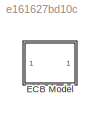
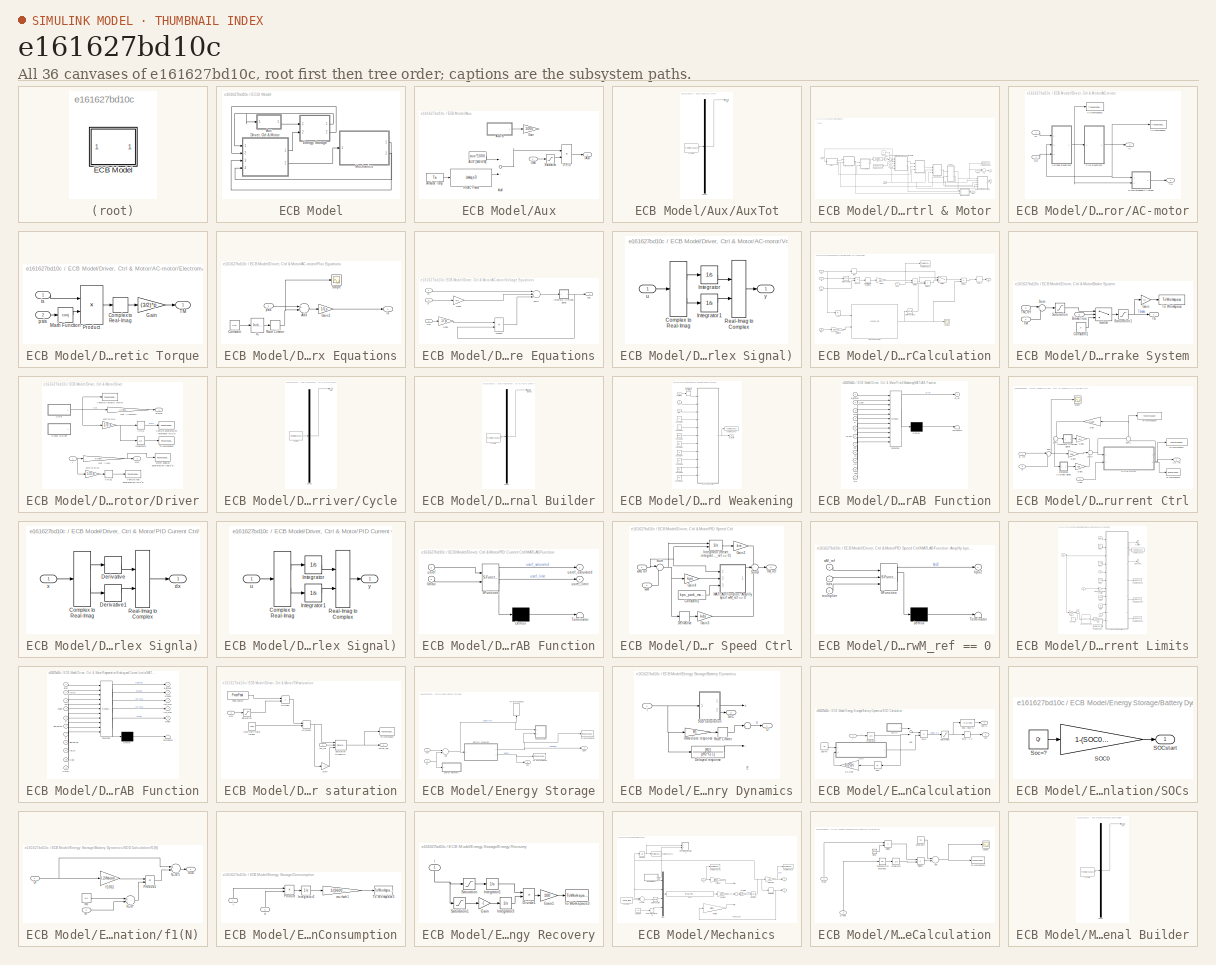
[diagram: thumbnail index - all 36 canvases of the model, root first then tree order]
MODEL slx_e161627bd10c
KIND model
CONFIG AbsTol = auto
CONFIG EnableMultiTasking = on
CONFIG FixedStep = 0.001
CONFIG MaxStep = auto
CONFIG MinStep = auto
CONFIG RelTol = 1e-3
CONFIG SampleTimeConstraint = Unconstrained
CONFIG Solver = ode4
CONFIG SolverName = ode4
CONFIG StartTime = 0.0
CONFIG StopTime = 1548.3
BLOCK [SubSystem] ECB Model
  Ports = []
  RequestExecContextInheritance = off
  Variant = off
BLOCK [SubSystem] ECB Model/Aux
  Ports = [1, 1]
  RequestExecContextInheritance = off
  Variant = off
BLOCK [Constant] ECB Model/Aux/AUX [kW to W]
  Value = aux*1000
BLOCK [Sum] ECB Model/Aux/Add
  InputSameDT = off
  OutDataTypeStr = Inherit: Inherit via internal rule
  Ports = [2, 1]
  SaturateOnIntegerOverflow = off
BLOCK [Constant] ECB Model/Aux/Ambient Temp
  Value = Ta
BLOCK [SubSystem] ECB Model/Aux/AuxTot
  ClipboardFcn = sigbuilder_block('clipboard');
  CloseFcn = sigbuilder_block('close');
  Commented = on
  ContinueFcn = sigbuilder_block('continue');
  CopyFcn = sigbuilder_block('copy');
  DeleteFcn = sigbuilder_block('delete');
  LoadFcn = sigbuilder_block('load');
  MaskHideContents = on
  ModelCloseFcn = sigbuilder_block('modelClose');
  NameChangeFcn = sigbuilder_block('namechange');
  OpenFcn = sigbuilder_block('open',[6 30 1428 682.5 ]);
  PauseFcn = sigbuilder_block('pause');
  Ports = [0, 1]
  PreSaveFcn = sigbuilder_block('preSave');
  RequestExecContextInheritance = off
  StartFcn = sigbuilder_block('start');
  StopFcn = sigbuilder_block('stop');
  Tag = STV Subsys
  Variant = off
BLOCK [Demux] ECB Model/Aux/AuxTot/Demux
  Outputs = 1
  Ports = [1, 1]
  Tag = STV Demux
BLOCK [FromWorkspace] ECB Model/Aux/AuxTot/FromWs
  SampleTime = 0
  Tag = STV FromWs
  VariableName = tuvar
  ZeroCross = on
BLOCK [Outport] ECB Model/Aux/AuxTot/vel
  IconDisplay = Port number
  Tag = STV Outport
BLOCK [Gain] ECB Model/Aux/Gain
  Commented = on
  Gain = 1000
  OutDataTypeStr = Inherit: Inherit via internal rule
  ParamDataTypeStr = Inherit: Inherit via internal rule
  SaturateOnIntegerOverflow = off
BLOCK [Lookup_n-D] ECB Model/Aux/HVAC Power
  BreakpointsForDimension1 = [-30.0000\n  -27.7680\n  -25.6721\n  -23.1831\n  -19.9733\n  -16.6978\n  -13.8805\n  -12.7007\n  -10.7343\n   -8.9644\n   -7.1281\n   -5.4232\n   -3.1932\n   -1.4876\n    0.8084\n    2.7110\n    5.2042\n    7.5666\n   10.6510\n   13.2108\n   14.7861\n   16.5593\n   18.6610\n   20.5663\n   22.1443\n   23.9195\n   25.1692\n   26.4203\n   27.8030\n   28.7907\n   29.5812\n   30.0418]
  InternalRulePriority = Speed
  NumberOfTableDimensions = 1
  Ports = [1, 1]
  RndMeth = Simplest
  Table = [22.3000\n   20.0013\n   18.1962\n   16.1024\n   13.5031\n   10.9040\n    8.8464\n    8.1607\n    7.0058\n    6.0676\n    5.3823\n    4.6608\n    3.9396\n    3.4709\n    2.8581\n    2.4258\n    1.9215\n    1.5978\n    1.2383\n    1.0954\n    1.0241\n    1.3503\n    1.7490\n    2.3281\n    3.3045\n    4.3533\n    5.2572\n    6.7392\n    8.2935\n    9.4501\n   10.4983\n   10.9321]*1000
BLOCK [Product] ECB Model/Aux/I=P//U
  InputSameDT = off
  Inputs = */
  OutDataTypeStr = Inherit: Inherit via internal rule
  Ports = [2, 1]
  RndMeth = Floor
  SaturateOnIntegerOverflow = off
BLOCK [Saturate] ECB Model/Aux/Saturation
  InputPortMap = u0
  LowerLimit = 300
  Ports = [1, 1]
  UpperLimit = 5000
BLOCK [Inport] ECB Model/Aux/Ubat
  IconDisplay = Port number
BLOCK [Outport] ECB Model/Aux/iAux
  IconDisplay = Port number
BLOCK [SubSystem] ECB Model/Driver, Ctrl & Motor
  Ports = [4, 2]
  RequestExecContextInheritance = off
  Variant = off
BLOCK [SubSystem] ECB Model/Driver, Ctrl & Motor/AC-motor
  Ports = [2, 2]
  RequestExecContextInheritance = off
  Variant = off
BLOCK [SubSystem] ECB Model/Driver, Ctrl & Motor/AC-motor/Electromagnetic Torque
  Ports = [2, 1]
  RequestExecContextInheritance = off
  Variant = off
BLOCK [ComplexToRealImag] ECB Model/Driver, Ctrl & Motor/AC-motor/Electromagnetic Torque/Complex to Real-Imag
  Output = Imag
  Ports = [1, 1]
BLOCK [Gain] ECB Model/Driver, Ctrl & Motor/AC-motor/Electromagnetic Torque/Gain
  Gain = (3/2)*p
  OutDataTypeStr = Inherit: Inherit via internal rule
  ParamDataTypeStr = Inherit: Inherit via internal rule
  SaturateOnIntegerOverflow = off
BLOCK [Math] ECB Model/Driver, Ctrl & Motor/AC-motor/Electromagnetic Torque/Math Function
  Operator = conj
  Ports = [1, 1]
BLOCK [Product] ECB Model/Driver, Ctrl & Motor/AC-motor/Electromagnetic Torque/Product
  InputSameDT = off
  OutDataTypeStr = Inherit: Inherit via internal rule
  Ports = [2, 1]
  RndMeth = Floor
  SaturateOnIntegerOverflow = off
BLOCK [Outport] ECB Model/Driver, Ctrl & Motor/AC-motor/Electromagnetic Torque/TM
  IconDisplay = Port number
BLOCK [Inport] ECB Model/Driver, Ctrl & Motor/AC-motor/Electromagnetic Torque/is
  IconDisplay = Port number
BLOCK [Inport] ECB Model/Driver, Ctrl & Motor/AC-motor/Electromagnetic Torque/psis
  IconDisplay = Port number
  Port = 2
BLOCK [SubSystem] ECB Model/Driver, Ctrl & Motor/AC-motor/Flux Equations
  Ports = [1, 1]
  RequestExecContextInheritance = off
  Variant = off
BLOCK [Sum] ECB Model/Driver, Ctrl & Motor/AC-motor/Flux Equations/Add
  InputSameDT = off
  Inputs = +-
  OutDataTypeStr = Inherit: Inherit via internal rule
  Ports = [2, 1]
  SaturateOnIntegerOverflow = off
BLOCK [Constant] ECB Model/Driver, Ctrl & Motor/AC-motor/Flux Equations/Constant
  Value = flux
BLOCK [Gain] ECB Model/Driver, Ctrl & Motor/AC-motor/Flux Equations/Gain2
  Gain = 1/Ls
  OutDataTypeStr = Inherit: Inherit via internal rule
  ParamDataTypeStr = Inherit: Inherit via internal rule
  SaturateOnIntegerOverflow = off
BLOCK [InitialCondition] ECB Model/Driver, Ctrl & Motor/AC-motor/Flux Equations/IC
  Value = 0
BLOCK [RateLimiter] ECB Model/Driver, Ctrl & Motor/AC-motor/Flux Equations/Rate Limiter
  SampleTimeMode = inherited
BLOCK [Scope] ECB Model/Driver, Ctrl & Motor/AC-motor/Flux Equations/Scope
  NumInputPorts = 1
  Ports = [1]
  ScopeSpecificationString = Simulink.scopes.TimeScopeBlockCfg('CurrentConfiguration', extmgr.ConfigurationSet(extmgr.Configuration('Core','General UI',true),extmgr.Configuration('Core','Source UI',true),extmgr.Configuration('Sources','WiredSimulink',true,'DataLoggingVariableName','ScopeData2'),extmgr.Configuration('Visuals','Time Domain',true,'SerializedDisplays',{struct('MinYLimReal','-0.07691','MaxYLimReal','0.71238','YLab...<+1417ch>
BLOCK [Outport] ECB Model/Driver, Ctrl & Motor/AC-motor/Flux Equations/is
  IconDisplay = Port number
BLOCK [Inport] ECB Model/Driver, Ctrl & Motor/AC-motor/Flux Equations/psis
  IconDisplay = Port number
BLOCK [Outport] ECB Model/Driver, Ctrl & Motor/AC-motor/TM
  IconDisplay = Port number
BLOCK [ToWorkspace] ECB Model/Driver, Ctrl & Motor/AC-motor/To Workspace1
  Commented = on
  FixptAsFi = on
  MaxDataPoints = inf
  Ports = [1]
  SampleTime = -1
  Save2DSignal = 3-D array (concatenate along third dimension)
  VariableName = is_complex
BLOCK [ToWorkspace] ECB Model/Driver, Ctrl & Motor/AC-motor/To Workspace2
  Commented = on
  FixptAsFi = on
  MaxDataPoints = inf
  Ports = [1]
  SampleTime = -1
  Save2DSignal = 3-D array (concatenate along third dimension)
  VariableName = psis_complex
BLOCK [SubSystem] ECB Model/Driver, Ctrl & Motor/AC-motor/Voltage Equations
  Ports = [3, 1]
  RequestExecContextInheritance = off
  Variant = off
BLOCK [Gain] ECB Model/Driver, Ctrl & Motor/AC-motor/Voltage Equations/Gain1
  Gain = 1i*p
  OutDataTypeStr = Inherit: Inherit via internal rule
  ParamDataTypeStr = Inherit: Inherit via internal rule
  SaturateOnIntegerOverflow = off
BLOCK [Gain] ECB Model/Driver, Ctrl & Motor/AC-motor/Voltage Equations/Gain2
  Gain = Rs
  OutDataTypeStr = Inherit: Inherit via internal rule
  ParamDataTypeStr = Inherit: Inherit via internal rule
  SaturateOnIntegerOverflow = off
BLOCK [SubSystem] ECB Model/Driver, Ctrl & Motor/AC-motor/Voltage Equations/Integrator (Complex Signal)
  Ports = [1, 1]
  RequestExecContextInheritance = off
  Variant = off
BLOCK [ComplexToRealImag] ECB Model/Driver, Ctrl & Motor/AC-motor/Voltage Equations/Integrator (Complex Signal)/Complex to Real-Imag
  Ports = [1, 2]
BLOCK [Integrator] ECB Model/Driver, Ctrl & Motor/AC-motor/Voltage Equations/Integrator (Complex Signal)/Integrator
  Ports = [1, 1]
BLOCK [Integrator] ECB Model/Driver, Ctrl & Motor/AC-motor/Voltage Equations/Integrator (Complex Signal)/Integrator1
  Ports = [1, 1]
BLOCK [RealImagToComplex] ECB Model/Driver, Ctrl & Motor/AC-motor/Voltage Equations/Integrator (Complex Signal)/Real-Imag to Complex
  Ports = [2, 1]
BLOCK [Inport] ECB Model/Driver, Ctrl & Motor/AC-motor/Voltage Equations/Integrator (Complex Signal)/u
  IconDisplay = Port number
BLOCK [Outport] ECB Model/Driver, Ctrl & Motor/AC-motor/Voltage Equations/Integrator (Complex Signal)/y
  IconDisplay = Port number
BLOCK [Product] ECB Model/Driver, Ctrl & Motor/AC-motor/Voltage Equations/Product
  InputSameDT = off
  OutDataTypeStr = Inherit: Inherit via internal rule
  Ports = [2, 1]
  RndMeth = Floor
  SaturateOnIntegerOverflow = off
BLOCK [Sum] ECB Model/Driver, Ctrl & Motor/AC-motor/Voltage Equations/Sum1
  InputSameDT = off
  Inputs = +--
  OutDataTypeStr = Inherit: Inherit via internal rule
  Ports = [3, 1]
  SaturateOnIntegerOverflow = off
BLOCK [Inport] ECB Model/Driver, Ctrl & Motor/AC-motor/Voltage Equations/is
  IconDisplay = Port number
  Port = 2
BLOCK [Outport] ECB Model/Driver, Ctrl & Motor/AC-motor/Voltage Equations/psis
  IconDisplay = Port number
BLOCK [Inport] ECB Model/Driver, Ctrl & Motor/AC-motor/Voltage Equations/us
  IconDisplay = Port number
BLOCK [Inport] ECB Model/Driver, Ctrl & Motor/AC-motor/Voltage Equations/wM
  IconDisplay = Port number
  Port = 3
BLOCK [Outport] ECB Model/Driver, Ctrl & Motor/AC-motor/is
  IconDisplay = Port number
  Port = 2
BLOCK [Inport] ECB Model/Driver, Ctrl & Motor/AC-motor/us
  IconDisplay = Port number
BLOCK [Inport] ECB Model/Driver, Ctrl & Motor/AC-motor/wM
  IconDisplay = Port number
  Port = 2
BLOCK [Sum] ECB Model/Driver, Ctrl & Motor/Add
  InputSameDT = off
  OutDataTypeStr = Inherit: Inherit via internal rule
  Ports = [2, 1]
  SaturateOnIntegerOverflow = off
BLOCK [SubSystem] ECB Model/Driver, Ctrl & Motor/Battery Current Calculation
  Ports = [5, 1]
  RequestExecContextInheritance = off
  Variant = off
BLOCK [Lookup_n-D] ECB Model/Driver, Ctrl & Motor/Battery Current Calculation/2-D Lookup Table
  BreakpointsForDimension1 = torqueeff
  BreakpointsForDimension2 = speedeff
  ExtrapMethod = Clip
  InternalRulePriority = Speed
  Ports = [2, 1]
  RndMeth = Simplest
  Table = effeff
  UseLastTableValue = on
BLOCK [Abs] ECB Model/Driver, Ctrl & Motor/Battery Current Calculation/Abs
  SaturateOnIntegerOverflow = off
BLOCK [ComplexToRealImag] ECB Model/Driver, Ctrl & Motor/Battery Current Calculation/Complex to Real-Imag
  Output = Real
  Ports = [1, 1]
BLOCK [Delay] ECB Model/Driver, Ctrl & Motor/Battery Current Calculation/Delay2
  DelayLength = 1
  InitialCondition = 0
  InputPortMap = u0
  Ports = [1, 1]
BLOCK [Product] ECB Model/Driver, Ctrl & Motor/Battery Current Calculation/Divide
  InputSameDT = off
  Inputs = */
  OutDataTypeStr = Inherit: Inherit via internal rule
  Ports = [2, 1]
  RndMeth = Floor
  SaturateOnIntegerOverflow = off
BLOCK [Product] ECB Model/Driver, Ctrl & Motor/Battery Current Calculation/Divide1
  InputSameDT = off
  Inputs = **
  OutDataTypeStr = Inherit: Inherit via internal rule
  Ports = [2, 1]
  RndMeth = Floor
  SaturateOnIntegerOverflow = off
BLOCK [Product] ECB Model/Driver, Ctrl & Motor/Battery Current Calculation/Divide2
  InputSameDT = off
  Inputs = */
  OutDataTypeStr = Inherit: Inherit via internal rule
  Ports = [2, 1]
  RndMeth = Floor
  SaturateOnIntegerOverflow = off
BLOCK [Gain] ECB Model/Driver, Ctrl & Motor/Battery Current Calculation/Gain5
  Gain = 3/2
  OutDataTypeStr = Inherit: Inherit via internal rule
  ParamDataTypeStr = Inherit: Inherit via internal rule
  SaturateOnIntegerOverflow = off
BLOCK [Math] ECB Model/Driver, Ctrl & Motor/Battery Current Calculation/Math Function
  Operator = conj
  Ports = [1, 1]
BLOCK [Math] ECB Model/Driver, Ctrl & Motor/Battery Current Calculation/Math Function1
  Operator = magnitude^2
  Ports = [1, 1]
BLOCK [Product] ECB Model/Driver, Ctrl & Motor/Battery Current Calculation/Product1
  InputSameDT = off
  OutDataTypeStr = Inherit: Inherit via internal rule
  Ports = [2, 1]
  RndMeth = Floor
  SaturateOnIntegerOverflow = off
BLOCK [Scope] ECB Model/Driver, Ctrl & Motor/Battery Current Calculation/Scope
  NumInputPorts = 1
  Ports = [1]
  ScopeSpecificationString = Simulink.scopes.TimeScopeBlockCfg('CurrentConfiguration', extmgr.ConfigurationSet(extmgr.Configuration('Core','General UI',true),extmgr.Configuration('Core','Source UI',true),extmgr.Configuration('Sources','WiredSimulink',true,'DataLoggingVariableName','ScopeData1'),extmgr.Configuration('Visuals','Time Domain',true,'SerializedDisplays',{struct('MinYLimReal','0.04697','MaxYLimReal','1.06477','YLabe...<+1420ch>
BLOCK [Signum] ECB Model/Driver, Ctrl & Motor/Battery Current Calculation/Sign
BLOCK [Switch] ECB Model/Driver, Ctrl & Motor/Battery Current Calculation/Switch
  Criteria = u2 > Threshold
  InputSameDT = off
  SaturateOnIntegerOverflow = off
BLOCK [Inport] ECB Model/Driver, Ctrl & Motor/Battery Current Calculation/TM
  IconDisplay = Port number
BLOCK [ToWorkspace] ECB Model/Driver, Ctrl & Motor/Battery Current Calculation/To Workspace1
  FixptAsFi = on
  MaxDataPoints = inf
  Ports = [1]
  SampleTime = -1
  Save2DSignal = 2-D array (concatenate along first dimension)
  VariableName = Pmote
BLOCK [Inport] ECB Model/Driver, Ctrl & Motor/Battery Current Calculation/Ubat
  IconDisplay = Port number
  Port = 4
BLOCK [Inport] ECB Model/Driver, Ctrl & Motor/Battery Current Calculation/Us,ref
  IconDisplay = Port number
  Port = 3
BLOCK [Outport] ECB Model/Driver, Ctrl & Motor/Battery Current Calculation/ia
  IconDisplay = Port number
BLOCK [Inport] ECB Model/Driver, Ctrl & Motor/Battery Current Calculation/is
  IconDisplay = Port number
  Port = 2
BLOCK [Inport] ECB Model/Driver, Ctrl & Motor/Battery Current Calculation/wM
  IconDisplay = Port number
  Port = 5
BLOCK [Gain] ECB Model/Driver, Ctrl & Motor/Battery Current Calculation/wM to rpm
  Gain = 60/(2*pi)
  OutDataTypeStr = Inherit: Inherit via internal rule
  ParamDataTypeStr = Inherit: Inherit via internal rule
  SaturateOnIntegerOverflow = off
BLOCK [SubSystem] ECB Model/Driver, Ctrl & Motor/Brake System
  Ports = [3, 1]
  RequestExecContextInheritance = off
  Variant = off
BLOCK [Inport] ECB Model/Driver, Ctrl & Motor/Brake System/BrakeTrue
  IconDisplay = Port number
  Port = 2
BLOCK [Constant] ECB Model/Driver, Ctrl & Motor/Brake System/Constant1
  Value = 0
BLOCK [Gain] ECB Model/Driver, Ctrl & Motor/Brake System/Gain
  Gain = 1/i
  OutDataTypeStr = Inherit: Inherit via internal rule
  ParamDataTypeStr = Inherit: Inherit via internal rule
  SaturateOnIntegerOverflow = off
BLOCK [Saturate] ECB Model/Driver, Ctrl & Motor/Brake System/Saturation
  InputPortMap = u0
  LowerLimit = -Tbmax/i
  Ports = [1, 1]
  UpperLimit = 0
BLOCK [Saturate] ECB Model/Driver, Ctrl & Motor/Brake System/Saturation1
  InputPortMap = u0
  LowerLimit = -Tbmax/i
  Ports = [1, 1]
  UpperLimit = 0
BLOCK [Sum] ECB Model/Driver, Ctrl & Motor/Brake System/Sum
  IconShape = round
  InputSameDT = off
  Inputs = |+-
  OutDataTypeStr = Inherit: Inherit via internal rule
  Ports = [2, 1]
  SaturateOnIntegerOverflow = off
BLOCK [Switch] ECB Model/Driver, Ctrl & Motor/Brake System/Switch
  Criteria = u2 > Threshold
  InputSameDT = off
  SaturateOnIntegerOverflow = off
  Threshold = 0.5
BLOCK [Inport] ECB Model/Driver, Ctrl & Motor/Brake System/TM
  IconDisplay = Port number
BLOCK [Inport] ECB Model/Driver, Ctrl & Motor/Brake System/TM_ref
  IconDisplay = Port number
  Port = 3
BLOCK [Outport] ECB Model/Driver, Ctrl & Motor/Brake System/Tb
  IconDisplay = Port number
BLOCK [ToWorkspace] ECB Model/Driver, Ctrl & Motor/Brake System/To Workspace
  FixptAsFi = on
  MaxDataPoints = inf
  Ports = [1]
  SampleTime = -1
  Save2DSignal = 3-D array (concatenate along third dimension)
  VariableName = TorqueBrake
BLOCK [SubSystem] ECB Model/Driver, Ctrl & Motor/Driver
  Ports = [1, 2]
  RequestExecContextInheritance = off
  Variant = off
BLOCK [SubSystem] ECB Model/Driver, Ctrl & Motor/Driver/Cycle
  ClipboardFcn = sigbuilder_block('clipboard');
  CloseFcn = sigbuilder_block('close');
  ContinueFcn = sigbuilder_block('continue');
  CopyFcn = sigbuilder_block('copy');
  DeleteFcn = sigbuilder_block('delete');
  LoadFcn = sigbuilder_block('load');
  MaskHideContents = on
  ModelCloseFcn = sigbuilder_block('modelClose');
  NameChangeFcn = sigbuilder_block('namechange');
  OpenFcn = sigbuilder_block('open',[6 30 1428 682.5 ]);
  PauseFcn = sigbuilder_block('pause');
  Ports = [0, 1]
  PreSaveFcn = sigbuilder_block('preSave');
  RequestExecContextInheritance = off
  StartFcn = sigbuilder_block('start');
  StopFcn = sigbuilder_block('stop');
  Tag = STV Subsys
  Variant = off
BLOCK [Demux] ECB Model/Driver, Ctrl & Motor/Driver/Cycle/Demux
  Outputs = 1
  Ports = [1, 1]
  Tag = STV Demux
BLOCK [FromWorkspace] ECB Model/Driver, Ctrl & Motor/Driver/Cycle/FromWs
  OutputAfterFinalValue = Setting to zero
  SampleTime = 0
  Tag = STV FromWs
  VariableName = tuvar
  ZeroCross = on
BLOCK [Outport] ECB Model/Driver, Ctrl & Motor/Driver/Cycle/vel
  IconDisplay = Port number
  Tag = STV Outport
BLOCK [Integrator] ECB Model/Driver, Ctrl & Motor/Driver/Integrator1
  Ports = [1, 1]
BLOCK [ToWorkspace] ECB Model/Driver, Ctrl & Motor/Driver/Motor angular acceleration (rad//s^2)
  FixptAsFi = on
  MaxDataPoints = inf
  Ports = [1]
  SampleTime = -1
  Save2DSignal = 2-D array (concatenate along first dimension)
  VariableName = wM
BLOCK [SubSystem] ECB Model/Driver, Ctrl & Motor/Driver/Signal Builder
  ClipboardFcn = sigbuilder_block('clipboard');
  CloseFcn = sigbuilder_block('close');
  Commented = on
  ContinueFcn = sigbuilder_block('continue');
  CopyFcn = sigbuilder_block('copy');
  DeleteFcn = sigbuilder_block('delete');
  LoadFcn = sigbuilder_block('load');
  MaskHideContents = on
  ModelCloseFcn = sigbuilder_block('modelClose');
  NameChangeFcn = sigbuilder_block('namechange');
  OpenFcn = sigbuilder_block('open',[6 30 1428 682.5 ]);
  PauseFcn = sigbuilder_block('pause');
  Ports = [0, 1]
  PreSaveFcn = sigbuilder_block('preSave');
  RequestExecContextInheritance = off
  StartFcn = sigbuilder_block('start');
  StopFcn = sigbuilder_block('stop');
  Tag = STV Subsys
  Variant = off
BLOCK [Demux] ECB Model/Driver, Ctrl & Motor/Driver/Signal Builder/Demux
  Outputs = 1
  Ports = [1, 1]
  Tag = STV Demux
BLOCK [FromWorkspace] ECB Model/Driver, Ctrl & Motor/Driver/Signal Builder/FromWs
  SampleTime = 0
  Tag = STV FromWs
  VariableName = tuvar
  ZeroCross = on
BLOCK [Outport] ECB Model/Driver, Ctrl & Motor/Driver/Signal Builder/Signal 1
  IconDisplay = Port number
  Tag = STV Outport
BLOCK [ToWorkspace] ECB Model/Driver, Ctrl & Motor/Driver/To Workspace2
  FixptAsFi = on
  MaxDataPoints = inf
  Ports = [1]
  SampleTime = -1
  Save2DSignal = 2-D array (concatenate along first dimension)
  VariableName = sref
BLOCK [ToWorkspace] ECB Model/Driver, Ctrl & Motor/Driver/Vehicle Velocity (km//h)
  FixptAsFi = on
  MaxDataPoints = inf
  Ports = [1]
  SampleTime = -1
  Save2DSignal = 2-D array (concatenate along first dimension)
  VariableName = vref
BLOCK [ToWorkspace] ECB Model/Driver, Ctrl & Motor/Driver/Vehicle acceleration reference (m//s^2)
  FixptAsFi = on
  MaxDataPoints = inf
  Ports = [1]
  SampleTime = -1
  Save2DSignal = 2-D array (concatenate along first dimension)
  VariableName = aref
BLOCK [ToWorkspace] ECB Model/Driver, Ctrl & Motor/Driver/Vehicle real acceleration (m//s^2)
  FixptAsFi = on
  MaxDataPoints = inf
  Ports = [1]
  SampleTime = -1
  Save2DSignal = 2-D array (concatenate along first dimension)
  VariableName = areal
BLOCK [Gain] ECB Model/Driver, Ctrl & Motor/Driver/kmh to m//s
  Gain = 1/3.6
  OutDataTypeStr = Inherit: Inherit via internal rule
  ParamDataTypeStr = Inherit: Inherit via internal rule
  SaturateOnIntegerOverflow = off
BLOCK [Gain] ECB Model/Driver, Ctrl & Motor/Driver/kmh to m//s1
  Gain = 1/3.6
  OutDataTypeStr = Inherit: Inherit via internal rule
  ParamDataTypeStr = Inherit: Inherit via internal rule
  SaturateOnIntegerOverflow = off
BLOCK [Inport] ECB Model/Driver, Ctrl & Motor/Driver/v
  IconDisplay = Port number
BLOCK [Derivative] ECB Model/Driver, Ctrl & Motor/Driver/v to a
BLOCK [Derivative] ECB Model/Driver, Ctrl & Motor/Driver/v to a1
BLOCK [Gain] ECB Model/Driver, Ctrl & Motor/Driver/vref -> Wm
  Gain = i/(tRout*3.6)
  OutDataTypeStr = Inherit: Inherit via internal rule
  ParamDataTypeStr = Inherit: Inherit via internal rule
  SaturateOnIntegerOverflow = off
BLOCK [Gain] ECB Model/Driver, Ctrl & Motor/Driver/vref -> Wmref1
  Gain = i/(tRout*3.6)
  OutDataTypeStr = Inherit: Inherit via internal rule
  ParamDataTypeStr = Inherit: Inherit via internal rule
  SaturateOnIntegerOverflow = off
BLOCK [Outport] ECB Model/Driver, Ctrl & Motor/Driver/wM
  IconDisplay = Port number
  Port = 2
BLOCK [Outport] ECB Model/Driver, Ctrl & Motor/Driver/wMref
  IconDisplay = Port number
BLOCK [SubSystem] ECB Model/Driver, Ctrl & Motor/Field Weakening
  Ports = [3, 1]
  RequestExecContextInheritance = off
  Variant = off
BLOCK [ComplexToRealImag] ECB Model/Driver, Ctrl & Motor/Field Weakening/Complex to Real-Imag
  Output = Imag
  Ports = [1, 1]
BLOCK [Constant] ECB Model/Driver, Ctrl & Motor/Field Weakening/Constant11
  Value = Rs
BLOCK [Constant] ECB Model/Driver, Ctrl & Motor/Field Weakening/Constant3
  Value = p
BLOCK [Constant] ECB Model/Driver, Ctrl & Motor/Field Weakening/Constant4
  Value = i
BLOCK [Constant] ECB Model/Driver, Ctrl & Motor/Field Weakening/Constant5
  Value = tRout
BLOCK [Constant] ECB Model/Driver, Ctrl & Motor/Field Weakening/Constant6
  Value = flux
BLOCK [Constant] ECB Model/Driver, Ctrl & Motor/Field Weakening/Constant7
  Value = Ls
BLOCK [Constant] ECB Model/Driver, Ctrl & Motor/Field Weakening/Constant8
  Value = Ich
BLOCK [Constant] ECB Model/Driver, Ctrl & Motor/Field Weakening/Constant9
  Value = Ids
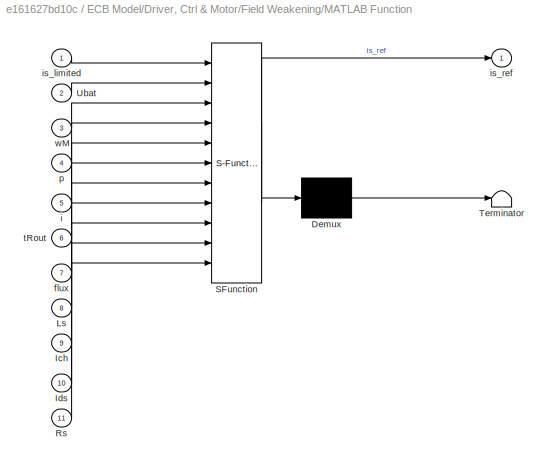
BLOCK [SubSystem] ECB Model/Driver, Ctrl & Motor/Field Weakening/MATLAB Function
  ErrorFcn = Stateflow.Translate.translate
  PermitHierarchicalResolution = ExplicitOnly
  Ports = [11, 1]
  RequestExecContextInheritance = off
  SFBlockType = MATLAB Function
  TreatAsAtomicUnit = on
  Variant = off
BLOCK [Demux] ECB Model/Driver, Ctrl & Motor/Field Weakening/MATLAB Function/ Demux 
  Outputs = 1
  Ports = [1, 1]
BLOCK [S-Function] ECB Model/Driver, Ctrl & Motor/Field Weakening/MATLAB Function/ SFunction 
  EnableBusSupport = on
  FunctionName = sf_sfun
  PortCounts = [11 2]
  Ports = [11, 2]
  SFcnIsStateOwnerBlock = off
  SFunctionDeploymentMode = off
  Tag = Stateflow S-Function ECB 4
BLOCK [Terminator] ECB Model/Driver, Ctrl & Motor/Field Weakening/MATLAB Function/ Terminator 
BLOCK [Inport] ECB Model/Driver, Ctrl & Motor/Field Weakening/MATLAB Function/Ich
  IconDisplay = Port number
  Port = 9
BLOCK [Inport] ECB Model/Driver, Ctrl & Motor/Field Weakening/MATLAB Function/Ids
  IconDisplay = Port number
  Port = 10
BLOCK [Inport] ECB Model/Driver, Ctrl & Motor/Field Weakening/MATLAB Function/Ls
  IconDisplay = Port number
  Port = 8
BLOCK [Inport] ECB Model/Driver, Ctrl & Motor/Field Weakening/MATLAB Function/Rs
  IconDisplay = Port number
  Port = 11
BLOCK [Inport] ECB Model/Driver, Ctrl & Motor/Field Weakening/MATLAB Function/Ubat
  IconDisplay = Port number
  Port = 2
BLOCK [Inport] ECB Model/Driver, Ctrl & Motor/Field Weakening/MATLAB Function/flux
  IconDisplay = Port number
  Port = 7
BLOCK [Inport] ECB Model/Driver, Ctrl & Motor/Field Weakening/MATLAB Function/i
  IconDisplay = Port number
  Port = 5
BLOCK [Inport] ECB Model/Driver, Ctrl & Motor/Field Weakening/MATLAB Function/is_limited
  IconDisplay = Port number
BLOCK [Outport] ECB Model/Driver, Ctrl & Motor/Field Weakening/MATLAB Function/is_ref
  IconDisplay = Port number
BLOCK [Inport] ECB Model/Driver, Ctrl & Motor/Field Weakening/MATLAB Function/p
  IconDisplay = Port number
  Port = 4
BLOCK [Inport] ECB Model/Driver, Ctrl & Motor/Field Weakening/MATLAB Function/tRout
  IconDisplay = Port number
  Port = 6
BLOCK [Inport] ECB Model/Driver, Ctrl & Motor/Field Weakening/MATLAB Function/wM
  IconDisplay = Port number
  Port = 3
BLOCK [ToWorkspace] ECB Model/Driver, Ctrl & Motor/Field Weakening/To Workspace
  Commented = on
  FixptAsFi = on
  MaxDataPoints = inf
  Ports = [1]
  SampleTime = -1
  Save2DSignal = 3-D array (concatenate along third dimension)
  VariableName = is_ref_complex
BLOCK [Inport] ECB Model/Driver, Ctrl & Motor/Field Weakening/Ubat
  IconDisplay = Port number
  Port = 3
BLOCK [Inport] ECB Model/Driver, Ctrl & Motor/Field Weakening/is_limited
  IconDisplay = Port number
BLOCK [Outport] ECB Model/Driver, Ctrl & Motor/Field Weakening/is_ref_fw
  IconDisplay = Port number
BLOCK [Inport] ECB Model/Driver, Ctrl & Motor/Field Weakening/wM
  IconDisplay = Port number
  Port = 2
BLOCK [From] ECB Model/Driver, Ctrl & Motor/From
  GotoTag = Tb
BLOCK [Gain] ECB Model/Driver, Ctrl & Motor/Gain2
  Gain = 1i
  OutDataTypeStr = Inherit: Inherit via internal rule
  ParamDataTypeStr = Inherit: Inherit via internal rule
  SaturateOnIntegerOverflow = off
BLOCK [Goto] ECB Model/Driver, Ctrl & Motor/Goto
  GotoTag = Tb
BLOCK [SubSystem] ECB Model/Driver, Ctrl & Motor/PID Current Ctrl
  Ports = [3, 1]
  RequestExecContextInheritance = off
  Variant = off
BLOCK [SubSystem] ECB Model/Driver, Ctrl & Motor/PID Current Ctrl/Derivative (Complex Signla)
  Ports = [1, 1]
  RequestExecContextInheritance = off
  Variant = off
BLOCK [ComplexToRealImag] ECB Model/Driver, Ctrl & Motor/PID Current Ctrl/Derivative (Complex Signla)/Complex to Real-Imag
  Ports = [1, 2]
BLOCK [Derivative] ECB Model/Driver, Ctrl & Motor/PID Current Ctrl/Derivative (Complex Signla)/Derivative
BLOCK [Derivative] ECB Model/Driver, Ctrl & Motor/PID Current Ctrl/Derivative (Complex Signla)/Derivative1
BLOCK [RealImagToComplex] ECB Model/Driver, Ctrl & Motor/PID Current Ctrl/Derivative (Complex Signla)/Real-Imag to Complex
  Ports = [2, 1]
BLOCK [Outport] ECB Model/Driver, Ctrl & Motor/PID Current Ctrl/Derivative (Complex Signla)/dx
  IconDisplay = Port number
BLOCK [Inport] ECB Model/Driver, Ctrl & Motor/PID Current Ctrl/Derivative (Complex Signla)/x
  IconDisplay = Port number
BLOCK [Gain] ECB Model/Driver, Ctrl & Motor/PID Current Ctrl/Gain
  Gain = 1/kpc
  OutDataTypeStr = Inherit: Inherit via internal rule
  ParamDataTypeStr = Inherit: Inherit via internal rule
  SaturateOnIntegerOverflow = off
BLOCK [Gain] ECB Model/Driver, Ctrl & Motor/PID Current Ctrl/Gain1
  Gain = kdc
  OutDataTypeStr = Inherit: Inherit via internal rule
  ParamDataTypeStr = Inherit: Inherit via internal rule
  SaturateOnIntegerOverflow = off
BLOCK [Gain] ECB Model/Driver, Ctrl & Motor/PID Current Ctrl/Gain2
  Gain = kic
  OutDataTypeStr = Inherit: Inherit via internal rule
  ParamDataTypeStr = Inherit: Inherit via internal rule
  SaturateOnIntegerOverflow = off
BLOCK [Gain] ECB Model/Driver, Ctrl & Motor/PID Current Ctrl/Gain4
  Gain = kpc
  OutDataTypeStr = Inherit: Inherit via internal rule
  ParamDataTypeStr = Inherit: Inherit via internal rule
  SaturateOnIntegerOverflow = off
BLOCK [SubSystem] ECB Model/Driver, Ctrl & Motor/PID Current Ctrl/Integrator (Complex Signal)
  Ports = [1, 1]
  RequestExecContextInheritance = off
  Variant = off
BLOCK [ComplexToRealImag] ECB Model/Driver, Ctrl & Motor/PID Current Ctrl/Integrator (Complex Signal)/Complex to Real-Imag
  Ports = [1, 2]
BLOCK [Integrator] ECB Model/Driver, Ctrl & Motor/PID Current Ctrl/Integrator (Complex Signal)/Integrator
  Ports = [1, 1]
BLOCK [Integrator] ECB Model/Driver, Ctrl & Motor/PID Current Ctrl/Integrator (Complex Signal)/Integrator1
  Ports = [1, 1]
BLOCK [RealImagToComplex] ECB Model/Driver, Ctrl & Motor/PID Current Ctrl/Integrator (Complex Signal)/Real-Imag to Complex
  Ports = [2, 1]
BLOCK [Inport] ECB Model/Driver, Ctrl & Motor/PID Current Ctrl/Integrator (Complex Signal)/u
  IconDisplay = Port number
BLOCK [Outport] ECB Model/Driver, Ctrl & Motor/PID Current Ctrl/Integrator (Complex Signal)/y
  IconDisplay = Port number
BLOCK [SubSystem] ECB Model/Driver, Ctrl & Motor/PID Current Ctrl/MATLAB Function
  ErrorFcn = Stateflow.Translate.translate
  PermitHierarchicalResolution = ExplicitOnly
  Ports = [2, 2]
  RequestExecContextInheritance = off
  SFBlockType = MATLAB Function
  TreatAsAtomicUnit = on
  Variant = off
BLOCK [Demux] ECB Model/Driver, Ctrl & Motor/PID Current Ctrl/MATLAB Function/ Demux 
  Outputs = 1
  Ports = [1, 1]
BLOCK [S-Function] ECB Model/Driver, Ctrl & Motor/PID Current Ctrl/MATLAB Function/ SFunction 
  EnableBusSupport = on
  FunctionName = sf_sfun
  PortCounts = [2 3]
  Ports = [2, 3]
  SFcnIsStateOwnerBlock = off
  SFunctionDeploymentMode = off
  Tag = Stateflow S-Function ECB 1
BLOCK [Terminator] ECB Model/Driver, Ctrl & Motor/PID Current Ctrl/MATLAB Function/ Terminator 
BLOCK [Inport] ECB Model/Driver, Ctrl & Motor/PID Current Ctrl/MATLAB Function/Umax
  IconDisplay = Port number
  Port = 2
BLOCK [Inport] ECB Model/Driver, Ctrl & Motor/PID Current Ctrl/MATLAB Function/usref
  IconDisplay = Port number
BLOCK [Outport] ECB Model/Driver, Ctrl & Motor/PID Current Ctrl/MATLAB Function/usref_limit
  IconDisplay = Port number
  Port = 2
BLOCK [Outport] ECB Model/Driver, Ctrl & Motor/PID Current Ctrl/MATLAB Function/usref_saturated
  IconDisplay = Port number
BLOCK [Scope] ECB Model/Driver, Ctrl & Motor/PID Current Ctrl/Scope
  NumInputPorts = 1
  Ports = [1]
  ScopeSpecificationString = Simulink.scopes.TimeScopeBlockCfg('CurrentConfiguration', extmgr.ConfigurationSet(extmgr.Configuration('Core','General UI',true),extmgr.Configuration('Core','Source UI',true),extmgr.Configuration('Sources','WiredSimulink',true,'DataLoggingVariableName','ScopeData1'),extmgr.Configuration('Visuals','Time Domain',true,'SerializedDisplays',{struct('MinYLimReal','-128.60879','MaxYLimReal','497.38165','...<+1440ch>
BLOCK [Sum] ECB Model/Driver, Ctrl & Motor/PID Current Ctrl/Sum
  IconShape = round
  InputSameDT = off
  Inputs = |+-
  OutDataTypeStr = Inherit: Inherit via internal rule
  Ports = [2, 1]
  SaturateOnIntegerOverflow = off
BLOCK [Sum] ECB Model/Driver, Ctrl & Motor/PID Current Ctrl/Sum1
  IconShape = round
  InputSameDT = off
  Inputs = -+
  OutDataTypeStr = Inherit: Inherit via internal rule
  Ports = [2, 1]
  SaturateOnIntegerOverflow = off
BLOCK [Sum] ECB Model/Driver, Ctrl & Motor/PID Current Ctrl/Sum2
  IconShape = round
  InputSameDT = off
  OutDataTypeStr = Inherit: Inherit via internal rule
  Ports = [2, 1]
  SaturateOnIntegerOverflow = off
BLOCK [Sum] ECB Model/Driver, Ctrl & Motor/PID Current Ctrl/Sum3
  IconShape = round
  InputSameDT = off
  Inputs = +++
  OutDataTypeStr = Inherit: Inherit via internal rule
  Ports = [3, 1]
  SaturateOnIntegerOverflow = off
BLOCK [ToWorkspace] ECB Model/Driver, Ctrl & Motor/PID Current Ctrl/To Workspace1
  Commented = on
  FixptAsFi = on
  MaxDataPoints = inf
  Ports = [1]
  SampleTime = -1
  Save2DSignal = 3-D array (concatenate along third dimension)
  VariableName = usref_limit
BLOCK [ToWorkspace] ECB Model/Driver, Ctrl & Motor/PID Current Ctrl/To Workspace2
  Commented = on
  FixptAsFi = on
  MaxDataPoints = inf
  Ports = [1]
  SampleTime = -1
  Save2DSignal = 3-D array (concatenate along third dimension)
  VariableName = Usref_complex
BLOCK [ToWorkspace] ECB Model/Driver, Ctrl & Motor/PID Current Ctrl/To Workspace3
  Commented = on
  FixptAsFi = on
  MaxDataPoints = inf
  Ports = [1]
  SampleTime = -1
  Save2DSignal = 3-D array (concatenate along third dimension)
  VariableName = Usref_saterror_complex
BLOCK [Inport] ECB Model/Driver, Ctrl & Motor/PID Current Ctrl/Ubat
  IconDisplay = Port number
  Port = 2
BLOCK [Outport] ECB Model/Driver, Ctrl & Motor/PID Current Ctrl/Us, ref
  IconDisplay = Port number
BLOCK [Inport] ECB Model/Driver, Ctrl & Motor/PID Current Ctrl/is
  IconDisplay = Port number
  Port = 3
BLOCK [Inport] ECB Model/Driver, Ctrl & Motor/PID Current Ctrl/is, ref
  IconDisplay = Port number
BLOCK [SubSystem] ECB Model/Driver, Ctrl & Motor/PID Speed Ctrl
  Ports = [2, 1]
  RequestExecContextInheritance = off
  Variant = off
BLOCK [Constant] ECB Model/Driver, Ctrl & Motor/PID Speed Ctrl/Constant2
  Value = kps_park_multi
BLOCK [Derivative] ECB Model/Driver, Ctrl & Motor/PID Speed Ctrl/Derivative
BLOCK [Gain] ECB Model/Driver, Ctrl & Motor/PID Speed Ctrl/Gain2
  Gain = kis
  OutDataTypeStr = Inherit: Inherit via internal rule
  ParamDataTypeStr = Inherit: Inherit via internal rule
  SaturateOnIntegerOverflow = off
BLOCK [Gain] ECB Model/Driver, Ctrl & Motor/PID Speed Ctrl/Gain3
  Gain = kds
  OutDataTypeStr = Inherit: Inherit via internal rule
  ParamDataTypeStr = Inherit: Inherit via internal rule
  SaturateOnIntegerOverflow = off
BLOCK [Gain] ECB Model/Driver, Ctrl & Motor/PID Speed Ctrl/Gain4
  Gain = kps
  OutDataTypeStr = Inherit: Inherit via internal rule
  ParamDataTypeStr = Inherit: Inherit via internal rule
  SaturateOnIntegerOverflow = off
BLOCK [Integrator] ECB Model/Driver, Ctrl & Motor/PID Speed Ctrl/Integrator (Reset integrator if wM_ref == 0)
  ExternalReset = falling
  Ports = [2, 1]
BLOCK [SubSystem] ECB Model/Driver, Ctrl & Motor/PID Speed Ctrl/MATLAB Function: Amplify kps if wM_ref == 0
  ErrorFcn = Stateflow.Translate.translate
  PermitHierarchicalResolution = ExplicitOnly
  Ports = [3, 1]
  RequestExecContextInheritance = off
  SFBlockType = MATLAB Function
  TreatAsAtomicUnit = on
  Variant = off
BLOCK [Demux] ECB Model/Driver, Ctrl & Motor/PID Speed Ctrl/MATLAB Function: Amplify kps if wM_ref == 0/ Demux 
  Outputs = 1
  Ports = [1, 1]
BLOCK [S-Function] ECB Model/Driver, Ctrl & Motor/PID Speed Ctrl/MATLAB Function: Amplify kps if wM_ref == 0/ SFunction 
  EnableBusSupport = on
  FunctionName = sf_sfun
  PortCounts = [3 2]
  Ports = [3, 2]
  SFcnIsStateOwnerBlock = off
  SFunctionDeploymentMode = off
  Tag = Stateflow S-Function ECB 3
BLOCK [Terminator] ECB Model/Driver, Ctrl & Motor/PID Speed Ctrl/MATLAB Function: Amplify kps if wM_ref == 0/ Terminator 
BLOCK [Inport] ECB Model/Driver, Ctrl & Motor/PID Speed Ctrl/MATLAB Function: Amplify kps if wM_ref == 0/kps
  IconDisplay = Port number
  Port = 2
BLOCK [Outport] ECB Model/Driver, Ctrl & Motor/PID Speed Ctrl/MATLAB Function: Amplify kps if wM_ref == 0/kps2
  IconDisplay = Port number
BLOCK [Inport] ECB Model/Driver, Ctrl & Motor/PID Speed Ctrl/MATLAB Function: Amplify kps if wM_ref == 0/multiplier
  IconDisplay = Port number
  Port = 3
BLOCK [Inport] ECB Model/Driver, Ctrl & Motor/PID Speed Ctrl/MATLAB Function: Amplify kps if wM_ref == 0/wM_ref
  IconDisplay = Port number
BLOCK [Sum] ECB Model/Driver, Ctrl & Motor/PID Speed Ctrl/Sum
  IconShape = round
  InputSameDT = off
  Inputs = |+-
  OutDataTypeStr = Inherit: Inherit via internal rule
  Ports = [2, 1]
  SaturateOnIntegerOverflow = off
BLOCK [Sum] ECB Model/Driver, Ctrl & Motor/PID Speed Ctrl/Sum3
  IconShape = round
  InputSameDT = off
  Inputs = +++
  OutDataTypeStr = Inherit: Inherit via internal rule
  Ports = [3, 1]
  SaturateOnIntegerOverflow = off
BLOCK [Outport] ECB Model/Driver, Ctrl & Motor/PID Speed Ctrl/TM_ref
  IconDisplay = Port number
BLOCK [Inport] ECB Model/Driver, Ctrl & Motor/PID Speed Ctrl/wM
  IconDisplay = Port number
  Port = 2
BLOCK [Inport] ECB Model/Driver, Ctrl & Motor/PID Speed Ctrl/wM, ref
  IconDisplay = Port number
BLOCK [SubSystem] ECB Model/Driver, Ctrl & Motor/Regenerative Braking and Current Limits
  Ports = [5, 2]
  RequestExecContextInheritance = off
  Variant = off
BLOCK [Lookup_n-D] ECB Model/Driver, Ctrl & Motor/Regenerative Braking and Current Limits/1-D Lookup Table
  BreakpointsForDimension1 = SOD
  InternalRulePriority = Speed
  NumberOfTableDimensions = 1
  Ports = [1, 1]
  RndMeth = Simplest
  Table = VOLT
BLOCK [Outport] ECB Model/Driver, Ctrl & Motor/Regenerative Braking and Current Limits/BrakeTrue
  IconDisplay = Port number
  Port = 2
BLOCK [Constant] ECB Model/Driver, Ctrl & Motor/Regenerative Braking and Current Limits/Constant
BLOCK [Gain] ECB Model/Driver, Ctrl & Motor/Regenerative Braking and Current Limits/Gain
  Gain = 1.0985
  OutDataTypeStr = Inherit: Inherit via internal rule
  ParamDataTypeStr = Inherit: Inherit via internal rule
  SaturateOnIntegerOverflow = off
BLOCK [Gain] ECB Model/Driver, Ctrl & Motor/Regenerative Braking and Current Limits/Gain1
  Gain = 0.01
  OutDataTypeStr = Inherit: Inherit via internal rule
  ParamDataTypeStr = Inherit: Inherit via internal rule
  SaturateOnIntegerOverflow = off
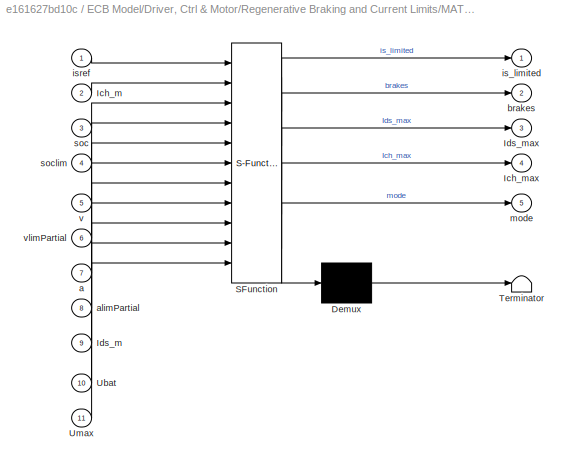
BLOCK [SubSystem] ECB Model/Driver, Ctrl & Motor/Regenerative Braking and Current Limits/MATLAB Function
  ErrorFcn = Stateflow.Translate.translate
  PermitHierarchicalResolution = ExplicitOnly
  Ports = [11, 5]
  RequestExecContextInheritance = off
  SFBlockType = MATLAB Function
  TreatAsAtomicUnit = on
  Variant = off
BLOCK [Demux] ECB Model/Driver, Ctrl & Motor/Regenerative Braking and Current Limits/MATLAB Function/ Demux 
  Outputs = 1
  Ports = [1, 1]
BLOCK [S-Function] ECB Model/Driver, Ctrl & Motor/Regenerative Braking and Current Limits/MATLAB Function/ SFunction 
  EnableBusSupport = on
  FunctionName = sf_sfun
  PortCounts = [11 6]
  Ports = [11, 6]
  SFcnIsStateOwnerBlock = off
  SFunctionDeploymentMode = off
  Tag = Stateflow S-Function ECB 2
BLOCK [Terminator] ECB Model/Driver, Ctrl & Motor/Regenerative Braking and Current Limits/MATLAB Function/ Terminator 
BLOCK [Inport] ECB Model/Driver, Ctrl & Motor/Regenerative Braking and Current Limits/MATLAB Function/Ich_m
  IconDisplay = Port number
  Port = 2
BLOCK [Outport] ECB Model/Driver, Ctrl & Motor/Regenerative Braking and Current Limits/MATLAB Function/Ich_max
  IconDisplay = Port number
  Port = 4
BLOCK [Inport] ECB Model/Driver, Ctrl & Motor/Regenerative Braking and Current Limits/MATLAB Function/Ids_m
  IconDisplay = Port number
  Port = 9
BLOCK [Outport] ECB Model/Driver, Ctrl & Motor/Regenerative Braking and Current Limits/MATLAB Function/Ids_max
  IconDisplay = Port number
  Port = 3
BLOCK [Inport] ECB Model/Driver, Ctrl & Motor/Regenerative Braking and Current Limits/MATLAB Function/Ubat
  IconDisplay = Port number
  Port = 10
BLOCK [Inport] ECB Model/Driver, Ctrl & Motor/Regenerative Braking and Current Limits/MATLAB Function/Umax
  IconDisplay = Port number
  Port = 11
BLOCK [Inport] ECB Model/Driver, Ctrl & Motor/Regenerative Braking and Current Limits/MATLAB Function/a
  IconDisplay = Port number
  Port = 7
BLOCK [Inport] ECB Model/Driver, Ctrl & Motor/Regenerative Braking and Current Limits/MATLAB Function/alimPartial
  IconDisplay = Port number
  Port = 8
BLOCK [Outport] ECB Model/Driver, Ctrl & Motor/Regenerative Braking and Current Limits/MATLAB Function/brakes
  IconDisplay = Port number
  Port = 2
BLOCK [Outport] ECB Model/Driver, Ctrl & Motor/Regenerative Braking and Current Limits/MATLAB Function/is_limited
  IconDisplay = Port number
BLOCK [Inport] ECB Model/Driver, Ctrl & Motor/Regenerative Braking and Current Limits/MATLAB Function/isref
  IconDisplay = Port number
BLOCK [Outport] ECB Model/Driver, Ctrl & Motor/Regenerative Braking and Current Limits/MATLAB Function/mode
  IconDisplay = Port number
  Port = 5
BLOCK [Inport] ECB Model/Driver, Ctrl & Motor/Regenerative Braking and Current Limits/MATLAB Function/soc
  IconDisplay = Port number
  Port = 3
BLOCK [Inport] ECB Model/Driver, Ctrl & Motor/Regenerative Braking and Current Limits/MATLAB Function/soclim
  IconDisplay = Port number
  Port = 4
BLOCK [Inport] ECB Model/Driver, Ctrl & Motor/Regenerative Braking and Current Limits/MATLAB Function/v
  IconDisplay = Port number
  Port = 5
BLOCK [Inport] ECB Model/Driver, Ctrl & Motor/Regenerative Braking and Current Limits/MATLAB Function/vlimPartial
  IconDisplay = Port number
  Port = 6
BLOCK [Sum] ECB Model/Driver, Ctrl & Motor/Regenerative Braking and Current Limits/Sum
  IconShape = round
  InputSameDT = off
  Inputs = |-+
  OutDataTypeStr = Inherit: Inherit via internal rule
  Ports = [2, 1]
  SaturateOnIntegerOverflow = off
BLOCK [ToWorkspace] ECB Model/Driver, Ctrl & Motor/Regenerative Braking and Current Limits/To Workspace
  FixptAsFi = on
  MaxDataPoints = inf
  Ports = [1]
  SampleTime = -1
  Save2DSignal = 3-D array (concatenate along third dimension)
  SaveFormat = Timeseries
  VariableName = Umax
BLOCK [ToWorkspace] ECB Model/Driver, Ctrl & Motor/Regenerative Braking and Current Limits/To Workspace1
  Commented = on
  FixptAsFi = on
  MaxDataPoints = inf
  Ports = [1]
  SampleTime = -1
  Save2DSignal = 3-D array (concatenate along third dimension)
  VariableName = Ids_max
BLOCK [ToWorkspace] ECB Model/Driver, Ctrl & Motor/Regenerative Braking and Current Limits/To Workspace2
  Commented = on
  FixptAsFi = on
  MaxDataPoints = inf
  Ports = [1]
  SampleTime = -1
  Save2DSignal = 3-D array (concatenate along third dimension)
  VariableName = regenmode
BLOCK [ToWorkspace] ECB Model/Driver, Ctrl & Motor/Regenerative Braking and Current Limits/To Workspace4
  Commented = on
  FixptAsFi = on
  MaxDataPoints = inf
  Ports = [1]
  SampleTime = -1
  Save2DSignal = 3-D array (concatenate along third dimension)
  VariableName = Ich_max
BLOCK [ToWorkspace] ECB Model/Driver, Ctrl & Motor/Regenerative Braking and Current Limits/To Workspace5
  Commented = on
  FixptAsFi = on
  MaxDataPoints = inf
  Ports = [1]
  SampleTime = -1
  Save2DSignal = 3-D array (concatenate along third dimension)
  VariableName = is_limited_complex
BLOCK [Inport] ECB Model/Driver, Ctrl & Motor/Regenerative Braking and Current Limits/Ubat
  IconDisplay = Port number
  Port = 5
BLOCK [Inport] ECB Model/Driver, Ctrl & Motor/Regenerative Braking and Current Limits/a
  IconDisplay = Port number
  Port = 4
BLOCK [Constant] ECB Model/Driver, Ctrl & Motor/Regenerative Braking and Current Limits/id, ref2
  Value = Ich
BLOCK [Constant] ECB Model/Driver, Ctrl & Motor/Regenerative Braking and Current Limits/id, ref3
  Value = vPart
BLOCK [Constant] ECB Model/Driver, Ctrl & Motor/Regenerative Braking and Current Limits/id, ref4
  Value = soclim
BLOCK [Constant] ECB Model/Driver, Ctrl & Motor/Regenerative Braking and Current Limits/id, ref6
  Value = aPart
BLOCK [Constant] ECB Model/Driver, Ctrl & Motor/Regenerative Braking and Current Limits/id, ref8
  Value = Ids
BLOCK [Outport] ECB Model/Driver, Ctrl & Motor/Regenerative Braking and Current Limits/is_limited
  IconDisplay = Port number
BLOCK [Inport] ECB Model/Driver, Ctrl & Motor/Regenerative Braking and Current Limits/isref
  IconDisplay = Port number
  Port = 2
BLOCK [Gain] ECB Model/Driver, Ctrl & Motor/Regenerative Braking and Current Limits/make decel. value positive
  Gain = -1
  OutDataTypeStr = Inherit: Inherit via internal rule
  ParamDataTypeStr = Inherit: Inherit via internal rule
  SaturateOnIntegerOverflow = off
BLOCK [Inport] ECB Model/Driver, Ctrl & Motor/Regenerative Braking and Current Limits/soc
  IconDisplay = Port number
  Port = 3
BLOCK [Inport] ECB Model/Driver, Ctrl & Motor/Regenerative Braking and Current Limits/v
  IconDisplay = Port number
BLOCK [Sum] ECB Model/Driver, Ctrl & Motor/Sum
  IconShape = round
  InputSameDT = off
  Inputs = ++|
  OutDataTypeStr = Inherit: Inherit via internal rule
  Ports = [2, 1]
  SaturateOnIntegerOverflow = off
BLOCK [SubSystem] ECB Model/Driver, Ctrl & Motor/TM saturation
  Ports = [2, 1]
  RequestExecContextInheritance = off
  Variant = off
BLOCK [Product] ECB Model/Driver, Ctrl & Motor/TM saturation/Divide2
  InputSameDT = off
  Inputs = */
  OutDataTypeStr = Inherit: Inherit via internal rule
  Ports = [2, 1]
  RndMeth = Floor
  SaturateOnIntegerOverflow = off
BLOCK [Gain] ECB Model/Driver, Ctrl & Motor/TM saturation/Gain
  Gain = -1
  OutDataTypeStr = Inherit: Inherit via internal rule
  ParamDataTypeStr = Inherit: Inherit via internal rule
  SaturateOnIntegerOverflow = off
BLOCK [Constant] ECB Model/Driver, Ctrl & Motor/TM saturation/Maximum motor torque
  Value = Tmax
BLOCK [MinMax] ECB Model/Driver, Ctrl & Motor/TM saturation/MinMax2
  InputSameDT = off
  Inputs = 2
  Ports = [2, 1]
  SaturateOnIntegerOverflow = off
BLOCK [Constant] ECB Model/Driver, Ctrl & Motor/TM saturation/Peak power
  Value = PmotPeak
BLOCK [Saturate] ECB Model/Driver, Ctrl & Motor/TM saturation/Saturation
  InputPortMap = u0
  LowerLimit = 0.01
  Ports = [1, 1]
  UpperLimit = inf
BLOCK [Reference] ECB Model/Driver, Ctrl & Motor/TM saturation/Saturation Dynamic1  REF=simulink/Discontinuities/Saturation
Dynamic
  Ports = [3, 1]
  SourceBlock = simulink/Discontinuities/Saturation\nDynamic
  SourceProductBaseCode = SL
  SourceProductName = Simulink
  SourceType = Saturation Dynamic
BLOCK [Inport] ECB Model/Driver, Ctrl & Motor/TM saturation/TM_ref
  IconDisplay = Port number
BLOCK [Outport] ECB Model/Driver, Ctrl & Motor/TM saturation/TMref_sat
  IconDisplay = Port number
BLOCK [ToWorkspace] ECB Model/Driver, Ctrl & Motor/TM saturation/To Workspace
  FixptAsFi = on
  MaxDataPoints = inf
  Ports = [1]
  SampleTime = -1
  Save2DSignal = 2-D array (concatenate along first dimension)
  VariableName = TMref
BLOCK [Inport] ECB Model/Driver, Ctrl & Motor/TM saturation/wM
  IconDisplay = Port number
  Port = 2
BLOCK [ToWorkspace] ECB Model/Driver, Ctrl & Motor/To Workspace1
  FixptAsFi = on
  MaxDataPoints = inf
  Ports = [1]
  SampleTime = -1
  Save2DSignal = 2-D array (concatenate along first dimension)
  VariableName = TorqueMotor
BLOCK [ToWorkspace] ECB Model/Driver, Ctrl & Motor/To Workspace2
  Commented = on
  FixptAsFi = on
  MaxDataPoints = inf
  Ports = [1]
  SampleTime = -1
  Save2DSignal = 2-D array (concatenate along first dimension)
  VariableName = is_ref_nolimit
BLOCK [Outport] ECB Model/Driver, Ctrl & Motor/Tx
  IconDisplay = Port number
  Port = 2
BLOCK [Inport] ECB Model/Driver, Ctrl & Motor/Ubat
  IconDisplay = Port number
BLOCK [Inport] ECB Model/Driver, Ctrl & Motor/a
  IconDisplay = Port number
  Port = 4
BLOCK [Outport] ECB Model/Driver, Ctrl & Motor/ia
  IconDisplay = Port number
BLOCK [Constant] ECB Model/Driver, Ctrl & Motor/id, ref
  Value = 0
BLOCK [Fcn] ECB Model/Driver, Ctrl & Motor/iq
  Expr = (u(1)*2)/(3*p*flux)
BLOCK [Inport] ECB Model/Driver, Ctrl & Motor/soc
  IconDisplay = Port number
  Port = 2
BLOCK [Inport] ECB Model/Driver, Ctrl & Motor/v
  IconDisplay = Port number
  Port = 3
BLOCK [SubSystem] ECB Model/Energy Storage
  Ports = [2, 2]
  RequestExecContextInheritance = off
  Variant = off
BLOCK [Sum] ECB Model/Energy Storage/Add
  InputSameDT = off
  OutDataTypeStr = Inherit: Inherit via internal rule
  Ports = [2, 1]
  SaturateOnIntegerOverflow = off
BLOCK [SubSystem] ECB Model/Energy Storage/Battery Dynamics
  Ports = [1, 2]
  RequestExecContextInheritance = off
  Variant = off
BLOCK [TransferFcn] ECB Model/Energy Storage/Battery Dynamics/Delayed response
  Denominator = [(R2*C) 1]
  Numerator = [R2]
BLOCK [Sum] ECB Model/Energy Storage/Battery Dynamics/E
  InputSameDT = off
  Inputs = +--
  OutDataTypeStr = Inherit: Inherit via internal rule
  Ports = [3, 1]
  SaturateOnIntegerOverflow = off
BLOCK [Gain] ECB Model/Energy Storage/Battery Dynamics/Immediate response
  Gain = R1
  OutDataTypeStr = Inherit: Inherit via internal rule
  ParamDataTypeStr = Inherit: Inherit via internal rule
  SaturateOnIntegerOverflow = off
BLOCK [RateLimiter] ECB Model/Energy Storage/Battery Dynamics/Rate Limiter
  FallingSlewLimit = -100
  RisingSlewLimit = 100
  SampleTimeMode = inherited
BLOCK [SubSystem] ECB Model/Energy Storage/Battery Dynamics/SOD Calculation
  Ports = [1, 2]
  RequestExecContextInheritance = off
  Variant = off
BLOCK [Gain] ECB Model/Energy Storage/Battery Dynamics/SOD Calculation/1//2 cycle
  Gain = 1/(2*Qr)
  OutDataTypeStr = Inherit: Inherit via internal rule
  ParamDataTypeStr = Inherit: Inherit via internal rule
  SaturateOnIntegerOverflow = off
BLOCK [Abs] ECB Model/Energy Storage/Battery Dynamics/SOD Calculation/Abs1
  SaturateOnIntegerOverflow = off
BLOCK [Sum] ECB Model/Energy Storage/Battery Dynamics/SOD Calculation/Add
  InputSameDT = off
  OutDataTypeStr = Inherit: Inherit via internal rule
  Ports = [2, 1]
  SaturateOnIntegerOverflow = off
BLOCK [Integrator] ECB Model/Energy Storage/Battery Dynamics/SOD Calculation/Integrator
  Ports = [1, 1]
BLOCK [SubSystem] ECB Model/Energy Storage/Battery Dynamics/SOD Calculation/SOCs
  Ports = [0, 1]
  RequestExecContextInheritance = off
  Variant = off
BLOCK [Gain] ECB Model/Energy Storage/Battery Dynamics/SOD Calculation/SOCs/SOC0
  Gain = 1-(SOC0/100)
  OutDataTypeStr = Inherit: Inherit via internal rule
  ParamDataTypeStr = Inherit: Inherit via internal rule
  SaturateOnIntegerOverflow = off
BLOCK [Outport] ECB Model/Energy Storage/Battery Dynamics/SOD Calculation/SOCs/SOCstart
  IconDisplay = Port number
BLOCK [Constant] ECB Model/Energy Storage/Battery Dynamics/SOD Calculation/SOCs/Soc=?
  Value = Qr
BLOCK [Product] ECB Model/Energy Storage/Battery Dynamics/SOD Calculation/SOD
  InputSameDT = off
  Inputs = */
  OutDataTypeStr = Inherit: Inherit via internal rule
  Ports = [2, 1]
  RndMeth = Floor
  SaturateOnIntegerOverflow = off
BLOCK [Lookup_n-D] ECB Model/Energy Storage/Battery Dynamics/SOD Calculation/SOD -> U
  BreakpointsForDimension1 = SOD
  BreakpointsForDimension2 = [4.2,2.5]
  BreakpointsForDimension3 = [5, 7]
  InternalRulePriority = Speed
  NumberOfTableDimensions = 1
  Ports = [1, 1]
  RndMeth = Simplest
  Table = VOLT
BLOCK [Saturate] ECB Model/Energy Storage/Battery Dynamics/SOD Calculation/Saturation
  InputPortMap = u0
  LowerLimit = 0
  Ports = [1, 1]
  UpperLimit = 1
BLOCK [Outport] ECB Model/Energy Storage/Battery Dynamics/SOD Calculation/SoC%
  IconDisplay = Port number
  Port = 2
BLOCK [Fcn] ECB Model/Energy Storage/Battery Dynamics/SOD Calculation/SoD->SoC%
  Expr = (1-u)*100
BLOCK [Constant] ECB Model/Energy Storage/Battery Dynamics/SOD Calculation/SoD=0
  Value = Qr
BLOCK [Outport] ECB Model/Energy Storage/Battery Dynamics/SOD Calculation/Voc
  IconDisplay = Port number
BLOCK [SubSystem] ECB Model/Energy Storage/Battery Dynamics/SOD Calculation/f1(N)
  Ports = [2, 1]
  RequestExecContextInheritance = off
  Variant = off
BLOCK [Inport] ECB Model/Energy Storage/Battery Dynamics/SOD Calculation/f1(N)/N*
  IconDisplay = Port number
  Port = 2
BLOCK [Sum] ECB Model/Energy Storage/Battery Dynamics/SOD Calculation/f1(N)/N+N*
  InputSameDT = off
  OutDataTypeStr = Inherit: Inherit via internal rule
  Ports = [2, 1]
  SaturateOnIntegerOverflow = off
BLOCK [Sum] ECB Model/Energy Storage/Battery Dynamics/SOD Calculation/f1(N)/N+N*1
  InputSameDT = off
  Inputs = +-
  OutDataTypeStr = Inherit: Inherit via internal rule
  Ports = [2, 1]
  SaturateOnIntegerOverflow = off
BLOCK [Constant] ECB Model/Energy Storage/Battery Dynamics/SOD Calculation/f1(N)/N0
  Value = N0
BLOCK [Product] ECB Model/Energy Storage/Battery Dynamics/SOD Calculation/f1(N)/Product1
  InputSameDT = off
  OutDataTypeStr = Inherit: Inherit via internal rule
  Ports = [2, 1]
  RndMeth = Floor
  SaturateOnIntegerOverflow = off
BLOCK [Inport] ECB Model/Energy Storage/Battery Dynamics/SOD Calculation/f1(N)/Qr
  IconDisplay = Port number
BLOCK [Outport] ECB Model/Energy Storage/Battery Dynamics/SOD Calculation/f1(N)/SOD
  IconDisplay = Port number
BLOCK [Gain] ECB Model/Energy Storage/Battery Dynamics/SOD Calculation/f1(N)/f1(N)1
  Gain = 0.2/Nnom
  OutDataTypeStr = Inherit: Inherit via internal rule
  ParamDataTypeStr = Inherit: Inherit via internal rule
  SaturateOnIntegerOverflow = off
BLOCK [Inport] ECB Model/Energy Storage/Battery Dynamics/SOD Calculation/i
  IconDisplay = Port number
BLOCK [Outport] ECB Model/Energy Storage/Battery Dynamics/SoC
  IconDisplay = Port number
  Port = 2
BLOCK [Outport] ECB Model/Energy Storage/Battery Dynamics/U
  IconDisplay = Port number
BLOCK [Inport] ECB Model/Energy Storage/Battery Dynamics/i
  IconDisplay = Port number
BLOCK [SubSystem] ECB Model/Energy Storage/Consumption
  Ports = [2]
  RequestExecContextInheritance = off
  Variant = off
BLOCK [Integrator] ECB Model/Energy Storage/Consumption/Integrator2
  Ports = [1, 1]
BLOCK [Product] ECB Model/Energy Storage/Consumption/Product
  InputSameDT = off
  OutDataTypeStr = Inherit: Inherit via internal rule
  Ports = [2, 1]
  RndMeth = Floor
  SaturateOnIntegerOverflow = off
BLOCK [ToWorkspace] ECB Model/Energy Storage/Consumption/To Workspace3
  FixptAsFi = on
  MaxDataPoints = inf
  Ports = [1]
  SampleTime = -1
  Save2DSignal = 3-D array (concatenate along third dimension)
  VariableName = kwh
BLOCK [Inport] ECB Model/Energy Storage/Consumption/i
  IconDisplay = Port number
BLOCK [Inport] ECB Model/Energy Storage/Consumption/u
  IconDisplay = Port number
  Port = 2
BLOCK [Gain] ECB Model/Energy Storage/Consumption/ws->kwh1
  Gain = 1/(3600*1000)
  OutDataTypeStr = Inherit: Inherit via internal rule
  ParamDataTypeStr = Inherit: Inherit via internal rule
  SaturateOnIntegerOverflow = off
BLOCK [SubSystem] ECB Model/Energy Storage/Energy Recovery
  Ports = [1]
  RequestExecContextInheritance = off
  Variant = off
BLOCK [Product] ECB Model/Energy Storage/Energy Recovery/Divide1
  InputSameDT = off
  Inputs = /*
  OutDataTypeStr = Inherit: Inherit via internal rule
  Ports = [2, 1]
  RndMeth = Floor
  SaturateOnIntegerOverflow = off
BLOCK [Gain] ECB Model/Energy Storage/Energy Recovery/Gain
  Gain = -1
  OutDataTypeStr = Inherit: Inherit via internal rule
  ParamDataTypeStr = Inherit: Inherit via internal rule
  SaturateOnIntegerOverflow = off
BLOCK [Gain] ECB Model/Energy Storage/Energy Recovery/Gain1
  Gain = 100
  OutDataTypeStr = Inherit: Inherit via internal rule
  ParamDataTypeStr = Inherit: Inherit via internal rule
  SaturateOnIntegerOverflow = off
BLOCK [Integrator] ECB Model/Energy Storage/Energy Recovery/Integrator1
  InitialCondition = 1
  Ports = [1, 1]
BLOCK [Integrator] ECB Model/Energy Storage/Energy Recovery/Integrator3
  Ports = [1, 1]
BLOCK [Saturate] ECB Model/Energy Storage/Energy Recovery/Saturation
  InputPortMap = u0
  LowerLimit = 0
  Ports = [1, 1]
  UpperLimit = 1000
BLOCK [Saturate] ECB Model/Energy Storage/Energy Recovery/Saturation1
  InputPortMap = u0
  LowerLimit = -1000
  Ports = [1, 1]
  UpperLimit = 0
BLOCK [ToWorkspace] ECB Model/Energy Storage/Energy Recovery/To Workspace3
  FixptAsFi = on
  MaxDataPoints = inf
  Ports = [1]
  SampleTime = -1
  Save2DSignal = 3-D array (concatenate along third dimension)
  VariableName = reg
BLOCK [Inport] ECB Model/Energy Storage/Energy Recovery/i
  IconDisplay = Port number
BLOCK [ToWorkspace] ECB Model/Energy Storage/To Workspace1
  FixptAsFi = on
  MaxDataPoints = inf
  Ports = [1]
  SampleTime = -1
  Save2DSignal = 3-D array (concatenate along third dimension)
  VariableName = Batu
BLOCK [ToWorkspace] ECB Model/Energy Storage/To Workspace2
  FixptAsFi = on
  MaxDataPoints = inf
  Ports = [1]
  SampleTime = -1
  Save2DSignal = 3-D array (concatenate along third dimension)
  VariableName = BatSoc
BLOCK [ToWorkspace] ECB Model/Energy Storage/To Workspace3
  FixptAsFi = on
  MaxDataPoints = inf
  Ports = [1]
  SampleTime = -1
  Save2DSignal = 3-D array (concatenate along third dimension)
  VariableName = Bati
BLOCK [Outport] ECB Model/Energy Storage/Ubat
  IconDisplay = Port number
BLOCK [Inport] ECB Model/Energy Storage/iAux
  IconDisplay = Port number
BLOCK [Inport] ECB Model/Energy Storage/iM
  IconDisplay = Port number
  Port = 2
BLOCK [Outport] ECB Model/Energy Storage/soc
  IconDisplay = Port number
  Port = 2
BLOCK [SubSystem] ECB Model/Mechanics
  Ports = [1, 2]
  RequestExecContextInheritance = off
  Variant = off
BLOCK [Constant] ECB Model/Mechanics/Constant
  Value = head_wind
BLOCK [Derivative] ECB Model/Mechanics/Derivative
BLOCK [SubSystem] ECB Model/Mechanics/Elevation Calculation
  Commented = on
  Ports = [2]
  RequestExecContextInheritance = off
  Variant = off
BLOCK [Sum] ECB Model/Mechanics/Elevation Calculation/Add
  InputSameDT = off
  OutDataTypeStr = Inherit: Inherit via internal rule
  Ports = [2, 1]
  SaturateOnIntegerOverflow = off
BLOCK [Clock] ECB Model/Mechanics/Elevation Calculation/Clock
BLOCK [Constant] ECB Model/Mechanics/Elevation Calculation/Constant1
  Value = 6.5
BLOCK [Product] ECB Model/Mechanics/Elevation Calculation/Divide
  InputSameDT = off
  Inputs = */
  OutDataTypeStr = Inherit: Inherit via internal rule
  Ports = [2, 1]
  RndMeth = Floor
  SaturateOnIntegerOverflow = off
BLOCK [Product] ECB Model/Mechanics/Elevation Calculation/Divide1
  InputSameDT = off
  Inputs = **
  OutDataTypeStr = Inherit: Inherit via internal rule
  Ports = [2, 1]
  RndMeth = Floor
  SaturateOnIntegerOverflow = off
BLOCK [Inport] ECB Model/Mechanics/Elevation Calculation/Grade
  IconDisplay = Port number
  Port = 2
BLOCK [Integrator] ECB Model/Mechanics/Elevation Calculation/Integrator
  Ports = [1, 1]
BLOCK [Scope] ECB Model/Mechanics/Elevation Calculation/Scope
  NumInputPorts = 1
  Ports = [1]
  ScopeSpecificationString = Simulink.scopes.TimeScopeBlockCfg('CurrentConfiguration', extmgr.ConfigurationSet(extmgr.Configuration('Core','General UI',true),extmgr.Configuration('Core','Source UI',true),extmgr.Configuration('Sources','WiredSimulink',true),extmgr.Configuration('Visuals','Time Domain',true,'SerializedDisplays',{struct('MinYLimReal','-1.01653','MaxYLimReal','3.97232','YLabelReal','','MinYLimMag','0.00000','MaxY...<+1397ch>
BLOCK [Inport] ECB Model/Mechanics/Elevation Calculation/Sreal
  IconDisplay = Port number
BLOCK [ToWorkspace] ECB Model/Mechanics/Elevation Calculation/To Workspace3
  FixptAsFi = on
  MaxDataPoints = inf
  Ports = [1]
  SampleTime = -1
  Save2DSignal = 2-D array (concatenate along first dimension)
  VariableName = Ele
BLOCK [Trigonometry] ECB Model/Mechanics/Elevation Calculation/Trigonometric Function2
  Operator = tan
  OutputSignalType = real
  Ports = [1, 1]
BLOCK [Gain] ECB Model/Mechanics/Finertia
  Gain = Jtot/(tRout^2)
  OutDataTypeStr = Inherit: Inherit via internal rule
  ParamDataTypeStr = Inherit: Inherit via internal rule
  SaturateOnIntegerOverflow = off
BLOCK [Fcn] ECB Model/Mechanics/Floss
  Expr = (m*9.81*(fr*sgn(u(2))*cos(u(1))+sin(u(1))))+(0.5*Cd*Ad*u(4)*u(3))
BLOCK [Sum] ECB Model/Mechanics/Force Load
  InputSameDT = off
  Inputs = +--
  OutDataTypeStr = Inherit: Inherit via internal rule
  Ports = [3, 1]
  SaturateOnIntegerOverflow = off
BLOCK [Integrator] ECB Model/Mechanics/Integrator2
  Ports = [1, 1]
BLOCK [Math] ECB Model/Mechanics/Math Function
  Operator = magnitude^2
  Ports = [1, 1]
BLOCK [Mux] ECB Model/Mechanics/Mux
  DisplayOption = bar
  Ports = [4, 1]
BLOCK [SubSystem] ECB Model/Mechanics/Signal Builder
  ClipboardFcn = sigbuilder_block('clipboard');
  CloseFcn = sigbuilder_block('close');
  ContinueFcn = sigbuilder_block('continue');
  CopyFcn = sigbuilder_block('copy');
  DeleteFcn = sigbuilder_block('delete');
  LoadFcn = sigbuilder_block('load');
  MaskHideContents = on
  ModelCloseFcn = sigbuilder_block('modelClose');
  NameChangeFcn = sigbuilder_block('namechange');
  OpenFcn = sigbuilder_block('open',[0 30 1440 723 ]);
  PauseFcn = sigbuilder_block('pause');
  Ports = [0, 1]
  PreSaveFcn = sigbuilder_block('preSave');
  RequestExecContextInheritance = off
  StartFcn = sigbuilder_block('start');
  StopFcn = sigbuilder_block('stop');
  Tag = STV Subsys
  Variant = off
BLOCK [Demux] ECB Model/Mechanics/Signal Builder/Demux
  Outputs = 1
  Ports = [1, 1]
  Tag = STV Demux
BLOCK [FromWorkspace] ECB Model/Mechanics/Signal Builder/FromWs
  SampleTime = 0
  Tag = STV FromWs
  VariableName = tuvar
  ZeroCross = on
BLOCK [Outport] ECB Model/Mechanics/Signal Builder/vel
  IconDisplay = Port number
  Tag = STV Outport
BLOCK [Constant] ECB Model/Mechanics/Tambient
  Value = Ta
BLOCK [Gain] ECB Model/Mechanics/Tm to Fx
  Gain = i/tRout
  OutDataTypeStr = Inherit: Inherit via internal rule
  ParamDataTypeStr = Inherit: Inherit via internal rule
  SaturateOnIntegerOverflow = off
BLOCK [ToWorkspace] ECB Model/Mechanics/To Workspace
  FixptAsFi = on
  MaxDataPoints = inf
  Ports = [1]
  SampleTime = -1
  Save2DSignal = 2-D array (concatenate along first dimension)
  VariableName = vreal
BLOCK [ToWorkspace] ECB Model/Mechanics/To Workspace1
  FixptAsFi = on
  MaxDataPoints = inf
  Ports = [1]
  SampleTime = -1
  Save2DSignal = 2-D array (concatenate along first dimension)
  VariableName = Tx
BLOCK [ToWorkspace] ECB Model/Mechanics/To Workspace2
  FixptAsFi = on
  MaxDataPoints = inf
  Ports = [1]
  SampleTime = -1
  Save2DSignal = 2-D array (concatenate along first dimension)
  VariableName = sreal
BLOCK [Inport] ECB Model/Mechanics/Tx
  IconDisplay = Port number
BLOCK [Sum] ECB Model/Mechanics/Vv + Hw
  InputSameDT = off
  OutDataTypeStr = Inherit: Inherit via internal rule
  Ports = [2, 1]
  SaturateOnIntegerOverflow = off
BLOCK [Outport] ECB Model/Mechanics/a
  IconDisplay = Port number
  Port = 2
BLOCK [Integrator] ECB Model/Mechanics/a to v (m//s)
  LimitOutput = on
  LowerSaturationLimit = 0
  Ports = [1, 1]
  UpperSaturationLimit = 100
BLOCK [Gain] ECB Model/Mechanics/a=Ftot//m
  Gain = 1/m
  OutDataTypeStr = Inherit: Inherit via internal rule
  ParamDataTypeStr = Inherit: Inherit via internal rule
  SaturateOnIntegerOverflow = off
BLOCK [Gain] ECB Model/Mechanics/gear loss
  Gain = 1/0.97
  OutDataTypeStr = Inherit: Inherit via internal rule
  ParamDataTypeStr = Inherit: Inherit via internal rule
  SaturateOnIntegerOverflow = off
BLOCK [Gain] ECB Model/Mechanics/m//s to km//h
  Gain = 3.6
  OutDataTypeStr = Inherit: Inherit via internal rule
  ParamDataTypeStr = Inherit: Inherit via internal rule
  SaturateOnIntegerOverflow = off
BLOCK [Lookup_n-D] ECB Model/Mechanics/roo as a function of Ta
  BreakpointsForDimension1 = [-25   -20   -15   -10    -5     0     5    10    15    20    25    30    35]
  InternalRulePriority = Speed
  NumberOfTableDimensions = 1
  Ports = [1, 1]
  RndMeth = Simplest
  Table = [ 1.4224    1.3943    1.3673    1.3413    1.3163    1.2922    1.2690    1.2466    1.2250    1.2041    1.1839    1.1644   1.1455]
BLOCK [Outport] ECB Model/Mechanics/v
  IconDisplay = Port number
ANNOTATION ECB Model/Driver, Ctrl & Motor: FastAC
LINE ECB Model/Aux/AUX [kW to W]:1 -> ECB Model/Aux/Add:1
LINE ECB Model/Aux/Add:1 -> ECB Model/Aux/I=P//U:1
LINE ECB Model/Aux/Ambient Temp:1 -> ECB Model/Aux/HVAC Power:1
LINE ECB Model/Aux/AuxTot:1 -> ECB Model/Aux/Gain:1
LINE ECB Model/Aux/HVAC Power:1 -> ECB Model/Aux/Add:2
LINE ECB Model/Aux/I=P//U:1 -> ECB Model/Aux/iAux:1
LINE ECB Model/Aux/Saturation:1 -> ECB Model/Aux/I=P//U:2
LINE ECB Model/Aux/Ubat:1 -> ECB Model/Aux/Saturation:1
LINE ECB Model/Aux:1 -> ECB Model/Energy Storage:1
LINE ECB Model/Driver, Ctrl & Motor/AC-motor/Electromagnetic Torque/Complex to Real-Imag:1 -> ECB Model/Driver, Ctrl & Motor/AC-motor/Electromagnetic Torque/Gain:1
LINE ECB Model/Driver, Ctrl & Motor/AC-motor/Electromagnetic Torque/Gain:1 -> ECB Model/Driver, Ctrl & Motor/AC-motor/Electromagnetic Torque/TM:1
LINE ECB Model/Driver, Ctrl & Motor/AC-motor/Electromagnetic Torque/Math Function:1 -> ECB Model/Driver, Ctrl & Motor/AC-motor/Electromagnetic Torque/Product:2
LINE ECB Model/Driver, Ctrl & Motor/AC-motor/Electromagnetic Torque/Product:1 -> ECB Model/Driver, Ctrl & Motor/AC-motor/Electromagnetic Torque/Complex to Real-Imag:1
LINE ECB Model/Driver, Ctrl & Motor/AC-motor/Electromagnetic Torque/is:1 -> ECB Model/Driver, Ctrl & Motor/AC-motor/Electromagnetic Torque/Product:1
LINE ECB Model/Driver, Ctrl & Motor/AC-motor/Electromagnetic Torque/psis:1 -> ECB Model/Driver, Ctrl & Motor/AC-motor/Electromagnetic Torque/Math Function:1
LINE ECB Model/Driver, Ctrl & Motor/AC-motor/Electromagnetic Torque:1 -> ECB Model/Driver, Ctrl & Motor/AC-motor/TM:1
LINE ECB Model/Driver, Ctrl & Motor/AC-motor/Flux Equations/Add:1 -> ECB Model/Driver, Ctrl & Motor/AC-motor/Flux Equations/Gain2:1
LINE ECB Model/Driver, Ctrl & Motor/AC-motor/Flux Equations/Constant:1 -> ECB Model/Driver, Ctrl & Motor/AC-motor/Flux Equations/IC:1
LINE ECB Model/Driver, Ctrl & Motor/AC-motor/Flux Equations/Gain2:1 -> ECB Model/Driver, Ctrl & Motor/AC-motor/Flux Equations/is:1
LINE ECB Model/Driver, Ctrl & Motor/AC-motor/Flux Equations/IC:1 -> ECB Model/Driver, Ctrl & Motor/AC-motor/Flux Equations/Rate Limiter:1
NET ECB Model/Driver, Ctrl & Motor/AC-motor/Flux Equations/Rate Limiter:1 -> ECB Model/Driver, Ctrl & Motor/AC-motor/Flux Equations/Add:2, ECB Model/Driver, Ctrl & Motor/AC-motor/Flux Equations/Scope:1
LINE ECB Model/Driver, Ctrl & Motor/AC-motor/Flux Equations/psis:1 -> ECB Model/Driver, Ctrl & Motor/AC-motor/Flux Equations/Add:1
NET ECB Model/Driver, Ctrl & Motor/AC-motor/Flux Equations:1 -> ECB Model/Driver, Ctrl & Motor/AC-motor/Electromagnetic Torque:1, ECB Model/Driver, Ctrl & Motor/AC-motor/To Workspace1:1, ECB Model/Driver, Ctrl & Motor/AC-motor/Voltage Equations:2, ECB Model/Driver, Ctrl & Motor/AC-motor/is:1
LINE ECB Model/Driver, Ctrl & Motor/AC-motor/Voltage Equations/Gain1:1 -> ECB Model/Driver, Ctrl & Motor/AC-motor/Voltage Equations/Product:1
LINE ECB Model/Driver, Ctrl & Motor/AC-motor/Voltage Equations/Gain2:1 -> ECB Model/Driver, Ctrl & Motor/AC-motor/Voltage Equations/Sum1:2
LINE ECB Model/Driver, Ctrl & Motor/AC-motor/Voltage Equations/Integrator (Complex Signal)/Complex to Real-Imag:1 -> ECB Model/Driver, Ctrl & Motor/AC-motor/Voltage Equations/Integrator (Complex Signal)/Integrator:1
LINE ECB Model/Driver, Ctrl & Motor/AC-motor/Voltage Equations/Integrator (Complex Signal)/Complex to Real-Imag:2 -> ECB Model/Driver, Ctrl & Motor/AC-motor/Voltage Equations/Integrator (Complex Signal)/Integrator1:1
LINE ECB Model/Driver, Ctrl & Motor/AC-motor/Voltage Equations/Integrator (Complex Signal)/Integrator1:1 -> ECB Model/Driver, Ctrl & Motor/AC-motor/Voltage Equations/Integrator (Complex Signal)/Real-Imag to Complex:2
LINE ECB Model/Driver, Ctrl & Motor/AC-motor/Voltage Equations/Integrator (Complex Signal)/Integrator:1 -> ECB Model/Driver, Ctrl & Motor/AC-motor/Voltage Equations/Integrator (Complex Signal)/Real-Imag to Complex:1
LINE ECB Model/Driver, Ctrl & Motor/AC-motor/Voltage Equations/Integrator (Complex Signal)/Real-Imag to Complex:1 -> ECB Model/Driver, Ctrl & Motor/AC-motor/Voltage Equations/Integrator (Complex Signal)/y:1
LINE ECB Model/Driver, Ctrl & Motor/AC-motor/Voltage Equations/Integrator (Complex Signal)/u:1 -> ECB Model/Driver, Ctrl & Motor/AC-motor/Voltage Equations/Integrator (Complex Signal)/Complex to Real-Imag:1
NET ECB Model/Driver, Ctrl & Motor/AC-motor/Voltage Equations/Integrator (Complex Signal):1 -> ECB Model/Driver, Ctrl & Motor/AC-motor/Voltage Equations/Product:2, ECB Model/Driver, Ctrl & Motor/AC-motor/Voltage Equations/psis:1
LINE ECB Model/Driver, Ctrl & Motor/AC-motor/Voltage Equations/Product:1 -> ECB Model/Driver, Ctrl & Motor/AC-motor/Voltage Equations/Sum1:3
LINE ECB Model/Driver, Ctrl & Motor/AC-motor/Voltage Equations/Sum1:1 -> ECB Model/Driver, Ctrl & Motor/AC-motor/Voltage Equations/Integrator (Complex Signal):1
LINE ECB Model/Driver, Ctrl & Motor/AC-motor/Voltage Equations/is:1 -> ECB Model/Driver, Ctrl & Motor/AC-motor/Voltage Equations/Gain2:1
LINE ECB Model/Driver, Ctrl & Motor/AC-motor/Voltage Equations/us:1 -> ECB Model/Driver, Ctrl & Motor/AC-motor/Voltage Equations/Sum1:1
LINE ECB Model/Driver, Ctrl & Motor/AC-motor/Voltage Equations/wM:1 -> ECB Model/Driver, Ctrl & Motor/AC-motor/Voltage Equations/Gain1:1
NET ECB Model/Driver, Ctrl & Motor/AC-motor/Voltage Equations:1 -> ECB Model/Driver, Ctrl & Motor/AC-motor/Electromagnetic Torque:2, ECB Model/Driver, Ctrl & Motor/AC-motor/Flux Equations:1, ECB Model/Driver, Ctrl & Motor/AC-motor/To Workspace2:1
LINE ECB Model/Driver, Ctrl & Motor/AC-motor/us:1 -> ECB Model/Driver, Ctrl & Motor/AC-motor/Voltage Equations:1
LINE ECB Model/Driver, Ctrl & Motor/AC-motor/wM:1 -> ECB Model/Driver, Ctrl & Motor/AC-motor/Voltage Equations:3
NET ECB Model/Driver, Ctrl & Motor/AC-motor:1 -> ECB Model/Driver, Ctrl & Motor/Add:1, ECB Model/Driver, Ctrl & Motor/Battery Current Calculation:1, ECB Model/Driver, Ctrl & Motor/Brake System:1, ECB Model/Driver, Ctrl & Motor/To Workspace1:1
NET ECB Model/Driver, Ctrl & Motor/AC-motor:2 -> ECB Model/Driver, Ctrl & Motor/Battery Current Calculation:2, ECB Model/Driver, Ctrl & Motor/PID Current Ctrl:3
LINE ECB Model/Driver, Ctrl & Motor/Add:1 -> ECB Model/Driver, Ctrl & Motor/Tx:1
NET ECB Model/Driver, Ctrl & Motor/Battery Current Calculation/2-D Lookup Table:1 -> ECB Model/Driver, Ctrl & Motor/Battery Current Calculation/Divide2:2, ECB Model/Driver, Ctrl & Motor/Battery Current Calculation/Math Function1:1, ECB Model/Driver, Ctrl & Motor/Battery Current Calculation/Scope:1
LINE ECB Model/Driver, Ctrl & Motor/Battery Current Calculation/Abs:1 -> ECB Model/Driver, Ctrl & Motor/Battery Current Calculation/2-D Lookup Table:1
LINE ECB Model/Driver, Ctrl & Motor/Battery Current Calculation/Complex to Real-Imag:1 -> ECB Model/Driver, Ctrl & Motor/Battery Current Calculation/Gain5:1
LINE ECB Model/Driver, Ctrl & Motor/Battery Current Calculation/Delay2:1 -> ECB Model/Driver, Ctrl & Motor/Battery Current Calculation/ia:1
LINE ECB Model/Driver, Ctrl & Motor/Battery Current Calculation/Divide1:1 -> ECB Model/Driver, Ctrl & Motor/Battery Current Calculation/Switch:3
LINE ECB Model/Driver, Ctrl & Motor/Battery Current Calculation/Divide2:1 -> ECB Model/Driver, Ctrl & Motor/Battery Current Calculation/Delay2:1
NET ECB Model/Driver, Ctrl & Motor/Battery Current Calculation/Divide:1 -> ECB Model/Driver, Ctrl & Motor/Battery Current Calculation/Divide1:1, ECB Model/Driver, Ctrl & Motor/Battery Current Calculation/Switch:1
NET ECB Model/Driver, Ctrl & Motor/Battery Current Calculation/Gain5:1 -> ECB Model/Driver, Ctrl & Motor/Battery Current Calculation/Divide:1, ECB Model/Driver, Ctrl & Motor/Battery Current Calculation/To Workspace1:1
LINE ECB Model/Driver, Ctrl & Motor/Battery Current Calculation/Math Function1:1 -> ECB Model/Driver, Ctrl & Motor/Battery Current Calculation/Divide1:2
LINE ECB Model/Driver, Ctrl & Motor/Battery Current Calculation/Math Function:1 -> ECB Model/Driver, Ctrl & Motor/Battery Current Calculation/Product1:1
LINE ECB Model/Driver, Ctrl & Motor/Battery Current Calculation/Product1:1 -> ECB Model/Driver, Ctrl & Motor/Battery Current Calculation/Complex to Real-Imag:1
LINE ECB Model/Driver, Ctrl & Motor/Battery Current Calculation/Sign:1 -> ECB Model/Driver, Ctrl & Motor/Battery Current Calculation/Switch:2
LINE ECB Model/Driver, Ctrl & Motor/Battery Current Calculation/Switch:1 -> ECB Model/Driver, Ctrl & Motor/Battery Current Calculation/Divide2:1
NET ECB Model/Driver, Ctrl & Motor/Battery Current Calculation/TM:1 -> ECB Model/Driver, Ctrl & Motor/Battery Current Calculation/Abs:1, ECB Model/Driver, Ctrl & Motor/Battery Current Calculation/Sign:1
LINE ECB Model/Driver, Ctrl & Motor/Battery Current Calculation/Ubat:1 -> ECB Model/Driver, Ctrl & Motor/Battery Current Calculation/Divide:2
LINE ECB Model/Driver, Ctrl & Motor/Battery Current Calculation/Us,ref:1 -> ECB Model/Driver, Ctrl & Motor/Battery Current Calculation/Product1:2
LINE ECB Model/Driver, Ctrl & Motor/Battery Current Calculation/is:1 -> ECB Model/Driver, Ctrl & Motor/Battery Current Calculation/Math Function:1
LINE ECB Model/Driver, Ctrl & Motor/Battery Current Calculation/wM to rpm:1 -> ECB Model/Driver, Ctrl & Motor/Battery Current Calculation/2-D Lookup Table:2
LINE ECB Model/Driver, Ctrl & Motor/Battery Current Calculation/wM:1 -> ECB Model/Driver, Ctrl & Motor/Battery Current Calculation/wM to rpm:1
LINE ECB Model/Driver, Ctrl & Motor/Battery Current Calculation:1 -> ECB Model/Driver, Ctrl & Motor/ia:1
LINE ECB Model/Driver, Ctrl & Motor/Brake System/BrakeTrue:1 -> ECB Model/Driver, Ctrl & Motor/Brake System/Switch:2
LINE ECB Model/Driver, Ctrl & Motor/Brake System/Constant1:1 -> ECB Model/Driver, Ctrl & Motor/Brake System/Switch:3
LINE ECB Model/Driver, Ctrl & Motor/Brake System/Gain:1 -> ECB Model/Driver, Ctrl & Motor/Brake System/To Workspace:1
NET ECB Model/Driver, Ctrl & Motor/Brake System/Saturation1:1 -> ECB Model/Driver, Ctrl & Motor/Brake System/Gain:1, ECB Model/Driver, Ctrl & Motor/Brake System/Tb:1
LINE ECB Model/Driver, Ctrl & Motor/Brake System/Saturation:1 -> ECB Model/Driver, Ctrl & Motor/Brake System/Switch:1
LINE ECB Model/Driver, Ctrl & Motor/Brake System/Sum:1 -> ECB Model/Driver, Ctrl & Motor/Brake System/Saturation:1
LINE ECB Model/Driver, Ctrl & Motor/Brake System/Switch:1 -> ECB Model/Driver, Ctrl & Motor/Brake System/Saturation1:1
LINE ECB Model/Driver, Ctrl & Motor/Brake System/TM:1 -> ECB Model/Driver, Ctrl & Motor/Brake System/Sum:2
LINE ECB Model/Driver, Ctrl & Motor/Brake System/TM_ref:1 -> ECB Model/Driver, Ctrl & Motor/Brake System/Sum:1
LINE ECB Model/Driver, Ctrl & Motor/Brake System:1 -> ECB Model/Driver, Ctrl & Motor/Goto:1
NET ECB Model/Driver, Ctrl & Motor/Driver/Cycle:1 -> ECB Model/Driver, Ctrl & Motor/Driver/Vehicle Velocity (km//h):1, ECB Model/Driver, Ctrl & Motor/Driver/kmh to m//s:1, ECB Model/Driver, Ctrl & Motor/Driver/vref -> Wmref1:1
LINE ECB Model/Driver, Ctrl & Motor/Driver/Integrator1:1 -> ECB Model/Driver, Ctrl & Motor/Driver/To Workspace2:1
LINE ECB Model/Driver, Ctrl & Motor/Driver/kmh to m//s1:1 -> ECB Model/Driver, Ctrl & Motor/Driver/v to a1:1
NET ECB Model/Driver, Ctrl & Motor/Driver/kmh to m//s:1 -> ECB Model/Driver, Ctrl & Motor/Driver/Integrator1:1, ECB Model/Driver, Ctrl & Motor/Driver/v to a:1
LINE ECB Model/Driver, Ctrl & Motor/Driver/v to a1:1 -> ECB Model/Driver, Ctrl & Motor/Driver/Vehicle real acceleration (m//s^2):1
LINE ECB Model/Driver, Ctrl & Motor/Driver/v to a:1 -> ECB Model/Driver, Ctrl & Motor/Driver/Vehicle acceleration reference (m//s^2):1
NET ECB Model/Driver, Ctrl & Motor/Driver/v:1 -> ECB Model/Driver, Ctrl & Motor/Driver/kmh to m//s1:1, ECB Model/Driver, Ctrl & Motor/Driver/vref -> Wm:1
NET ECB Model/Driver, Ctrl & Motor/Driver/vref -> Wm:1 -> ECB Model/Driver, Ctrl & Motor/Driver/Motor angular acceleration (rad//s^2):1, ECB Model/Driver, Ctrl & Motor/Driver/wM:1
LINE ECB Model/Driver, Ctrl & Motor/Driver/vref -> Wmref1:1 -> ECB Model/Driver, Ctrl & Motor/Driver/wMref:1
LINE ECB Model/Driver, Ctrl & Motor/Driver:1 -> ECB Model/Driver, Ctrl & Motor/PID Speed Ctrl:1
NET ECB Model/Driver, Ctrl & Motor/Driver:2 -> ECB Model/Driver, Ctrl & Motor/AC-motor:2, ECB Model/Driver, Ctrl & Motor/Battery Current Calculation:5, ECB Model/Driver, Ctrl & Motor/Field Weakening:2, ECB Model/Driver, Ctrl & Motor/PID Speed Ctrl:2, ECB Model/Driver, Ctrl & Motor/TM saturation:2
LINE ECB Model/Driver, Ctrl & Motor/Field Weakening/Complex to Real-Imag:1 -> ECB Model/Driver, Ctrl & Motor/Field Weakening/MATLAB Function:1
LINE ECB Model/Driver, Ctrl & Motor/Field Weakening/Constant11:1 -> ECB Model/Driver, Ctrl & Motor/Field Weakening/MATLAB Function:11
LINE ECB Model/Driver, Ctrl & Motor/Field Weakening/Constant3:1 -> ECB Model/Driver, Ctrl & Motor/Field Weakening/MATLAB Function:4
LINE ECB Model/Driver, Ctrl & Motor/Field Weakening/Constant4:1 -> ECB Model/Driver, Ctrl & Motor/Field Weakening/MATLAB Function:5
LINE ECB Model/Driver, Ctrl & Motor/Field Weakening/Constant5:1 -> ECB Model/Driver, Ctrl & Motor/Field Weakening/MATLAB Function:6
LINE ECB Model/Driver, Ctrl & Motor/Field Weakening/Constant6:1 -> ECB Model/Driver, Ctrl & Motor/Field Weakening/MATLAB Function:7
LINE ECB Model/Driver, Ctrl & Motor/Field Weakening/Constant7:1 -> ECB Model/Driver, Ctrl & Motor/Field Weakening/MATLAB Function:8
LINE ECB Model/Driver, Ctrl & Motor/Field Weakening/Constant8:1 -> ECB Model/Driver, Ctrl & Motor/Field Weakening/MATLAB Function:9
LINE ECB Model/Driver, Ctrl & Motor/Field Weakening/Constant9:1 -> ECB Model/Driver, Ctrl & Motor/Field Weakening/MATLAB Function:10
NET ECB Model/Driver, Ctrl & Motor/Field Weakening/MATLAB Function:1 -> ECB Model/Driver, Ctrl & Motor/Field Weakening/To Workspace:1, ECB Model/Driver, Ctrl & Motor/Field Weakening/is_ref_fw:1
LINE ECB Model/Driver, Ctrl & Motor/Field Weakening/Ubat:1 -> ECB Model/Driver, Ctrl & Motor/Field Weakening/MATLAB Function:2
LINE ECB Model/Driver, Ctrl & Motor/Field Weakening/is_limited:1 -> ECB Model/Driver, Ctrl & Motor/Field Weakening/Complex to Real-Imag:1
LINE ECB Model/Driver, Ctrl & Motor/Field Weakening/wM:1 -> ECB Model/Driver, Ctrl & Motor/Field Weakening/MATLAB Function:3
LINE ECB Model/Driver, Ctrl & Motor/Field Weakening:1 -> ECB Model/Driver, Ctrl & Motor/PID Current Ctrl:1
LINE ECB Model/Driver, Ctrl & Motor/From:1 -> ECB Model/Driver, Ctrl & Motor/Add:2
LINE ECB Model/Driver, Ctrl & Motor/Gain2:1 -> ECB Model/Driver, Ctrl & Motor/Sum:2
LINE ECB Model/Driver, Ctrl & Motor/PID Current Ctrl/Derivative (Complex Signla)/Complex to Real-Imag:1 -> ECB Model/Driver, Ctrl & Motor/PID Current Ctrl/Derivative (Complex Signla)/Derivative:1
LINE ECB Model/Driver, Ctrl & Motor/PID Current Ctrl/Derivative (Complex Signla)/Complex to Real-Imag:2 -> ECB Model/Driver, Ctrl & Motor/PID Current Ctrl/Derivative (Complex Signla)/Derivative1:1
LINE ECB Model/Driver, Ctrl & Motor/PID Current Ctrl/Derivative (Complex Signla)/Derivative1:1 -> ECB Model/Driver, Ctrl & Motor/PID Current Ctrl/Derivative (Complex Signla)/Real-Imag to Complex:2
LINE ECB Model/Driver, Ctrl & Motor/PID Current Ctrl/Derivative (Complex Signla)/Derivative:1 -> ECB Model/Driver, Ctrl & Motor/PID Current Ctrl/Derivative (Complex Signla)/Real-Imag to Complex:1
LINE ECB Model/Driver, Ctrl & Motor/PID Current Ctrl/Derivative (Complex Signla)/Real-Imag to Complex:1 -> ECB Model/Driver, Ctrl & Motor/PID Current Ctrl/Derivative (Complex Signla)/dx:1
LINE ECB Model/Driver, Ctrl & Motor/PID Current Ctrl/Derivative (Complex Signla)/x:1 -> ECB Model/Driver, Ctrl & Motor/PID Current Ctrl/Derivative (Complex Signla)/Complex to Real-Imag:1
LINE ECB Model/Driver, Ctrl & Motor/PID Current Ctrl/Derivative (Complex Signla):1 -> ECB Model/Driver, Ctrl & Motor/PID Current Ctrl/Gain1:1
LINE ECB Model/Driver, Ctrl & Motor/PID Current Ctrl/Gain1:1 -> ECB Model/Driver, Ctrl & Motor/PID Current Ctrl/Sum3:3
LINE ECB Model/Driver, Ctrl & Motor/PID Current Ctrl/Gain2:1 -> ECB Model/Driver, Ctrl & Motor/PID Current Ctrl/Sum3:1
LINE ECB Model/Driver, Ctrl & Motor/PID Current Ctrl/Gain4:1 -> ECB Model/Driver, Ctrl & Motor/PID Current Ctrl/Sum3:2
LINE ECB Model/Driver, Ctrl & Motor/PID Current Ctrl/Gain:1 -> ECB Model/Driver, Ctrl & Motor/PID Current Ctrl/Sum2:1
LINE ECB Model/Driver, Ctrl & Motor/PID Current Ctrl/Integrator (Complex Signal)/Complex to Real-Imag:1 -> ECB Model/Driver, Ctrl & Motor/PID Current Ctrl/Integrator (Complex Signal)/Integrator:1
LINE ECB Model/Driver, Ctrl & Motor/PID Current Ctrl/Integrator (Complex Signal)/Complex to Real-Imag:2 -> ECB Model/Driver, Ctrl & Motor/PID Current Ctrl/Integrator (Complex Signal)/Integrator1:1
LINE ECB Model/Driver, Ctrl & Motor/PID Current Ctrl/Integrator (Complex Signal)/Integrator1:1 -> ECB Model/Driver, Ctrl & Motor/PID Current Ctrl/Integrator (Complex Signal)/Real-Imag to Complex:2
LINE ECB Model/Driver, Ctrl & Motor/PID Current Ctrl/Integrator (Complex Signal)/Integrator:1 -> ECB Model/Driver, Ctrl & Motor/PID Current Ctrl/Integrator (Complex Signal)/Real-Imag to Complex:1
LINE ECB Model/Driver, Ctrl & Motor/PID Current Ctrl/Integrator (Complex Signal)/Real-Imag to Complex:1 -> ECB Model/Driver, Ctrl & Motor/PID Current Ctrl/Integrator (Complex Signal)/y:1
LINE ECB Model/Driver, Ctrl & Motor/PID Current Ctrl/Integrator (Complex Signal)/u:1 -> ECB Model/Driver, Ctrl & Motor/PID Current Ctrl/Integrator (Complex Signal)/Complex to Real-Imag:1
LINE ECB Model/Driver, Ctrl & Motor/PID Current Ctrl/Integrator (Complex Signal):1 -> ECB Model/Driver, Ctrl & Motor/PID Current Ctrl/Gain2:1
NET ECB Model/Driver, Ctrl & Motor/PID Current Ctrl/MATLAB Function:1 -> ECB Model/Driver, Ctrl & Motor/PID Current Ctrl/Sum1:2, ECB Model/Driver, Ctrl & Motor/PID Current Ctrl/To Workspace2:1, ECB Model/Driver, Ctrl & Motor/PID Current Ctrl/Us, ref:1
LINE ECB Model/Driver, Ctrl & Motor/PID Current Ctrl/MATLAB Function:2 -> ECB Model/Driver, Ctrl & Motor/PID Current Ctrl/To Workspace1:1
NET ECB Model/Driver, Ctrl & Motor/PID Current Ctrl/Sum1:1 -> ECB Model/Driver, Ctrl & Motor/PID Current Ctrl/Gain:1, ECB Model/Driver, Ctrl & Motor/PID Current Ctrl/To Workspace3:1
LINE ECB Model/Driver, Ctrl & Motor/PID Current Ctrl/Sum2:1 -> ECB Model/Driver, Ctrl & Motor/PID Current Ctrl/Integrator (Complex Signal):1
NET ECB Model/Driver, Ctrl & Motor/PID Current Ctrl/Sum3:1 -> ECB Model/Driver, Ctrl & Motor/PID Current Ctrl/MATLAB Function:1, ECB Model/Driver, Ctrl & Motor/PID Current Ctrl/Sum1:1
NET ECB Model/Driver, Ctrl & Motor/PID Current Ctrl/Sum:1 -> ECB Model/Driver, Ctrl & Motor/PID Current Ctrl/Derivative (Complex Signla):1, ECB Model/Driver, Ctrl & Motor/PID Current Ctrl/Gain4:1, ECB Model/Driver, Ctrl & Motor/PID Current Ctrl/Scope:1, ECB Model/Driver, Ctrl & Motor/PID Current Ctrl/Sum2:2
LINE ECB Model/Driver, Ctrl & Motor/PID Current Ctrl/Ubat:1 -> ECB Model/Driver, Ctrl & Motor/PID Current Ctrl/MATLAB Function:2
LINE ECB Model/Driver, Ctrl & Motor/PID Current Ctrl/is, ref:1 -> ECB Model/Driver, Ctrl & Motor/PID Current Ctrl/Sum:1
LINE ECB Model/Driver, Ctrl & Motor/PID Current Ctrl/is:1 -> ECB Model/Driver, Ctrl & Motor/PID Current Ctrl/Sum:2
NET ECB Model/Driver, Ctrl & Motor/PID Current Ctrl:1 -> ECB Model/Driver, Ctrl & Motor/AC-motor:1, ECB Model/Driver, Ctrl & Motor/Battery Current Calculation:3
LINE ECB Model/Driver, Ctrl & Motor/PID Speed Ctrl/Constant2:1 -> ECB Model/Driver, Ctrl & Motor/PID Speed Ctrl/MATLAB Function: Amplify kps if wM_ref == 0:3
LINE ECB Model/Driver, Ctrl & Motor/PID Speed Ctrl/Derivative:1 -> ECB Model/Driver, Ctrl & Motor/PID Speed Ctrl/Gain3:1
LINE ECB Model/Driver, Ctrl & Motor/PID Speed Ctrl/Gain2:1 -> ECB Model/Driver, Ctrl & Motor/PID Speed Ctrl/Sum3:1
LINE ECB Model/Driver, Ctrl & Motor/PID Speed Ctrl/Gain3:1 -> ECB Model/Driver, Ctrl & Motor/PID Speed Ctrl/Sum3:3
LINE ECB Model/Driver, Ctrl & Motor/PID Speed Ctrl/Gain4:1 -> ECB Model/Driver, Ctrl & Motor/PID Speed Ctrl/MATLAB Function: Amplify kps if wM_ref == 0:2
LINE ECB Model/Driver, Ctrl & Motor/PID Speed Ctrl/Integrator (Reset integrator if wM_ref == 0):1 -> ECB Model/Driver, Ctrl & Motor/PID Speed Ctrl/Gain2:1
LINE ECB Model/Driver, Ctrl & Motor/PID Speed Ctrl/MATLAB Function: Amplify kps if wM_ref == 0:1 -> ECB Model/Driver, Ctrl & Motor/PID Speed Ctrl/Sum3:2
LINE ECB Model/Driver, Ctrl & Motor/PID Speed Ctrl/Sum3:1 -> ECB Model/Driver, Ctrl & Motor/PID Speed Ctrl/TM_ref:1
NET ECB Model/Driver, Ctrl & Motor/PID Speed Ctrl/Sum:1 -> ECB Model/Driver, Ctrl & Motor/PID Speed Ctrl/Derivative:1, ECB Model/Driver, Ctrl & Motor/PID Speed Ctrl/Gain4:1, ECB Model/Driver, Ctrl & Motor/PID Speed Ctrl/Integrator (Reset integrator if wM_ref == 0):1
NET ECB Model/Driver, Ctrl & Motor/PID Speed Ctrl/wM, ref:1 -> ECB Model/Driver, Ctrl & Motor/PID Speed Ctrl/Integrator (Reset integrator if wM_ref == 0):2, ECB Model/Driver, Ctrl & Motor/PID Speed Ctrl/MATLAB Function: Amplify kps if wM_ref == 0:1, ECB Model/Driver, Ctrl & Motor/PID Speed Ctrl/Sum:1
LINE ECB Model/Driver, Ctrl & Motor/PID Speed Ctrl/wM:1 -> ECB Model/Driver, Ctrl & Motor/PID Speed Ctrl/Sum:2
NET ECB Model/Driver, Ctrl & Motor/PID Speed Ctrl:1 -> ECB Model/Driver, Ctrl & Motor/Brake System:3, ECB Model/Driver, Ctrl & Motor/TM saturation:1
LINE ECB Model/Driver, Ctrl & Motor/Regenerative Braking and Current Limits/1-D Lookup Table:1 -> ECB Model/Driver, Ctrl & Motor/Regenerative Braking and Current Limits/Gain:1
LINE ECB Model/Driver, Ctrl & Motor/Regenerative Braking and Current Limits/Constant:1 -> ECB Model/Driver, Ctrl & Motor/Regenerative Braking and Current Limits/Sum:2
LINE ECB Model/Driver, Ctrl & Motor/Regenerative Braking and Current Limits/Gain1:1 -> ECB Model/Driver, Ctrl & Motor/Regenerative Braking and Current Limits/Sum:1
NET ECB Model/Driver, Ctrl & Motor/Regenerative Braking and Current Limits/Gain:1 -> ECB Model/Driver, Ctrl & Motor/Regenerative Braking and Current Limits/MATLAB Function:11, ECB Model/Driver, Ctrl & Motor/Regenerative Braking and Current Limits/To Workspace:1
NET ECB Model/Driver, Ctrl & Motor/Regenerative Braking and Current Limits/MATLAB Function:1 -> ECB Model/Driver, Ctrl & Motor/Regenerative Braking and Current Limits/To Workspace5:1, ECB Model/Driver, Ctrl & Motor/Regenerative Braking and Current Limits/is_limited:1
LINE ECB Model/Driver, Ctrl & Motor/Regenerative Braking and Current Limits/MATLAB Function:2 -> ECB Model/Driver, Ctrl & Motor/Regenerative Braking and Current Limits/BrakeTrue:1
LINE ECB Model/Driver, Ctrl & Motor/Regenerative Braking and Current Limits/MATLAB Function:3 -> ECB Model/Driver, Ctrl & Motor/Regenerative Braking and Current Limits/To Workspace1:1
LINE ECB Model/Driver, Ctrl & Motor/Regenerative Braking and Current Limits/MATLAB Function:4 -> ECB Model/Driver, Ctrl & Motor/Regenerative Braking and Current Limits/To Workspace4:1
LINE ECB Model/Driver, Ctrl & Motor/Regenerative Braking and Current Limits/MATLAB Function:5 -> ECB Model/Driver, Ctrl & Motor/Regenerative Braking and Current Limits/To Workspace2:1
LINE ECB Model/Driver, Ctrl & Motor/Regenerative Braking and Current Limits/Sum:1 -> ECB Model/Driver, Ctrl & Motor/Regenerative Braking and Current Limits/1-D Lookup Table:1
LINE ECB Model/Driver, Ctrl & Motor/Regenerative Braking and Current Limits/Ubat:1 -> ECB Model/Driver, Ctrl & Motor/Regenerative Braking and Current Limits/MATLAB Function:10
LINE ECB Model/Driver, Ctrl & Motor/Regenerative Braking and Current Limits/a:1 -> ECB Model/Driver, Ctrl & Motor/Regenerative Braking and Current Limits/make decel. value positive:1
LINE ECB Model/Driver, Ctrl & Motor/Regenerative Braking and Current Limits/id, ref2:1 -> ECB Model/Driver, Ctrl & Motor/Regenerative Braking and Current Limits/MATLAB Function:2
LINE ECB Model/Driver, Ctrl & Motor/Regenerative Braking and Current Limits/id, ref3:1 -> ECB Model/Driver, Ctrl & Motor/Regenerative Braking and Current Limits/MATLAB Function:6
LINE ECB Model/Driver, Ctrl & Motor/Regenerative Braking and Current Limits/id, ref4:1 -> ECB Model/Driver, Ctrl & Motor/Regenerative Braking and Current Limits/MATLAB Function:4
LINE ECB Model/Driver, Ctrl & Motor/Regenerative Braking and Current Limits/id, ref6:1 -> ECB Model/Driver, Ctrl & Motor/Regenerative Braking and Current Limits/MATLAB Function:8
LINE ECB Model/Driver, Ctrl & Motor/Regenerative Braking and Current Limits/id, ref8:1 -> ECB Model/Driver, Ctrl & Motor/Regenerative Braking and Current Limits/MATLAB Function:9
LINE ECB Model/Driver, Ctrl & Motor/Regenerative Braking and Current Limits/isref:1 -> ECB Model/Driver, Ctrl & Motor/Regenerative Braking and Current Limits/MATLAB Function:1
LINE ECB Model/Driver, Ctrl & Motor/Regenerative Braking and Current Limits/make decel. value positive:1 -> ECB Model/Driver, Ctrl & Motor/Regenerative Braking and Current Limits/MATLAB Function:7
NET ECB Model/Driver, Ctrl & Motor/Regenerative Braking and Current Limits/soc:1 -> ECB Model/Driver, Ctrl & Motor/Regenerative Braking and Current Limits/Gain1:1, ECB Model/Driver, Ctrl & Motor/Regenerative Braking and Current Limits/MATLAB Function:3
LINE ECB Model/Driver, Ctrl & Motor/Regenerative Braking and Current Limits/v:1 -> ECB Model/Driver, Ctrl & Motor/Regenerative Braking and Current Limits/MATLAB Function:5
LINE ECB Model/Driver, Ctrl & Motor/Regenerative Braking and Current Limits:1 -> ECB Model/Driver, Ctrl & Motor/Field Weakening:1
LINE ECB Model/Driver, Ctrl & Motor/Regenerative Braking and Current Limits:2 -> ECB Model/Driver, Ctrl & Motor/Brake System:2
NET ECB Model/Driver, Ctrl & Motor/Sum:1 -> ECB Model/Driver, Ctrl & Motor/Regenerative Braking and Current Limits:2, ECB Model/Driver, Ctrl & Motor/To Workspace2:1
LINE ECB Model/Driver, Ctrl & Motor/TM saturation/Divide2:1 -> ECB Model/Driver, Ctrl & Motor/TM saturation/MinMax2:1
LINE ECB Model/Driver, Ctrl & Motor/TM saturation/Gain:1 -> ECB Model/Driver, Ctrl & Motor/TM saturation/Saturation Dynamic1:3
LINE ECB Model/Driver, Ctrl & Motor/TM saturation/Maximum motor torque:1 -> ECB Model/Driver, Ctrl & Motor/TM saturation/MinMax2:2
NET ECB Model/Driver, Ctrl & Motor/TM saturation/MinMax2:1 -> ECB Model/Driver, Ctrl & Motor/TM saturation/Gain:1, ECB Model/Driver, Ctrl & Motor/TM saturation/Saturation Dynamic1:1
LINE ECB Model/Driver, Ctrl & Motor/TM saturation/Peak power:1 -> ECB Model/Driver, Ctrl & Motor/TM saturation/Divide2:1
NET ECB Model/Driver, Ctrl & Motor/TM saturation/Saturation Dynamic1:1 -> ECB Model/Driver, Ctrl & Motor/TM saturation/TMref_sat:1, ECB Model/Driver, Ctrl & Motor/TM saturation/To Workspace:1
LINE ECB Model/Driver, Ctrl & Motor/TM saturation/Saturation:1 -> ECB Model/Driver, Ctrl & Motor/TM saturation/Divide2:2
LINE ECB Model/Driver, Ctrl & Motor/TM saturation/TM_ref:1 -> ECB Model/Driver, Ctrl & Motor/TM saturation/Saturation Dynamic1:2
LINE ECB Model/Driver, Ctrl & Motor/TM saturation/wM:1 -> ECB Model/Driver, Ctrl & Motor/TM saturation/Saturation:1
LINE ECB Model/Driver, Ctrl & Motor/TM saturation:1 -> ECB Model/Driver, Ctrl & Motor/iq:1
NET ECB Model/Driver, Ctrl & Motor/Ubat:1 -> ECB Model/Driver, Ctrl & Motor/Battery Current Calculation:4, ECB Model/Driver, Ctrl & Motor/Field Weakening:3, ECB Model/Driver, Ctrl & Motor/PID Current Ctrl:2, ECB Model/Driver, Ctrl & Motor/Regenerative Braking and Current Limits:5
LINE ECB Model/Driver, Ctrl & Motor/a:1 -> ECB Model/Driver, Ctrl & Motor/Regenerative Braking and Current Limits:4
LINE ECB Model/Driver, Ctrl & Motor/id, ref:1 -> ECB Model/Driver, Ctrl & Motor/Sum:1
LINE ECB Model/Driver, Ctrl & Motor/iq:1 -> ECB Model/Driver, Ctrl & Motor/Gain2:1
LINE ECB Model/Driver, Ctrl & Motor/soc:1 -> ECB Model/Driver, Ctrl & Motor/Regenerative Braking and Current Limits:3
NET ECB Model/Driver, Ctrl & Motor/v:1 -> ECB Model/Driver, Ctrl & Motor/Driver:1, ECB Model/Driver, Ctrl & Motor/Regenerative Braking and Current Limits:1
LINE ECB Model/Driver, Ctrl & Motor:1 -> ECB Model/Energy Storage:2
LINE ECB Model/Driver, Ctrl & Motor:2 -> ECB Model/Mechanics:1
NET ECB Model/Energy Storage/Add:1 -> ECB Model/Energy Storage/Battery Dynamics:1, ECB Model/Energy Storage/Consumption:1, ECB Model/Energy Storage/To Workspace3:1
LINE ECB Model/Energy Storage/Battery Dynamics/Delayed response:1 -> ECB Model/Energy Storage/Battery Dynamics/E:3
LINE ECB Model/Energy Storage/Battery Dynamics/E:1 -> ECB Model/Energy Storage/Battery Dynamics/U:1
LINE ECB Model/Energy Storage/Battery Dynamics/Immediate response:1 -> ECB Model/Energy Storage/Battery Dynamics/Rate Limiter:1
LINE ECB Model/Energy Storage/Battery Dynamics/Rate Limiter:1 -> ECB Model/Energy Storage/Battery Dynamics/E:2
LINE ECB Model/Energy Storage/Battery Dynamics/SOD Calculation/1//2 cycle:1 -> ECB Model/Energy Storage/Battery Dynamics/SOD Calculation/f1(N):2
LINE ECB Model/Energy Storage/Battery Dynamics/SOD Calculation/Abs1:1 -> ECB Model/Energy Storage/Battery Dynamics/SOD Calculation/1//2 cycle:1
LINE ECB Model/Energy Storage/Battery Dynamics/SOD Calculation/Add:1 -> ECB Model/Energy Storage/Battery Dynamics/SOD Calculation/SOD:1
NET ECB Model/Energy Storage/Battery Dynamics/SOD Calculation/Integrator:1 -> ECB Model/Energy Storage/Battery Dynamics/SOD Calculation/Abs1:1, ECB Model/Energy Storage/Battery Dynamics/SOD Calculation/Add:2
LINE ECB Model/Energy Storage/Battery Dynamics/SOD Calculation/SOCs/SOC0:1 -> ECB Model/Energy Storage/Battery Dynamics/SOD Calculation/SOCs/SOCstart:1
LINE ECB Model/Energy Storage/Battery Dynamics/SOD Calculation/SOCs/Soc=?:1 -> ECB Model/Energy Storage/Battery Dynamics/SOD Calculation/SOCs/SOC0:1
LINE ECB Model/Energy Storage/Battery Dynamics/SOD Calculation/SOCs:1 -> ECB Model/Energy Storage/Battery Dynamics/SOD Calculation/Add:1
LINE ECB Model/Energy Storage/Battery Dynamics/SOD Calculation/SOD -> U:1 -> ECB Model/Energy Storage/Battery Dynamics/SOD Calculation/Voc:1
LINE ECB Model/Energy Storage/Battery Dynamics/SOD Calculation/SOD:1 -> ECB Model/Energy Storage/Battery Dynamics/SOD Calculation/Saturation:1
NET ECB Model/Energy Storage/Battery Dynamics/SOD Calculation/Saturation:1 -> ECB Model/Energy Storage/Battery Dynamics/SOD Calculation/SOD -> U:1, ECB Model/Energy Storage/Battery Dynamics/SOD Calculation/SoD->SoC%:1
LINE ECB Model/Energy Storage/Battery Dynamics/SOD Calculation/SoD->SoC%:1 -> ECB Model/Energy Storage/Battery Dynamics/SOD Calculation/SoC%:1
LINE ECB Model/Energy Storage/Battery Dynamics/SOD Calculation/SoD=0:1 -> ECB Model/Energy Storage/Battery Dynamics/SOD Calculation/f1(N):1
LINE ECB Model/Energy Storage/Battery Dynamics/SOD Calculation/f1(N)/N*:1 -> ECB Model/Energy Storage/Battery Dynamics/SOD Calculation/f1(N)/N+N*:2
LINE ECB Model/Energy Storage/Battery Dynamics/SOD Calculation/f1(N)/N+N*1:1 -> ECB Model/Energy Storage/Battery Dynamics/SOD Calculation/f1(N)/SOD:1
LINE ECB Model/Energy Storage/Battery Dynamics/SOD Calculation/f1(N)/N+N*:1 -> ECB Model/Energy Storage/Battery Dynamics/SOD Calculation/f1(N)/Product1:2
LINE ECB Model/Energy Storage/Battery Dynamics/SOD Calculation/f1(N)/N0:1 -> ECB Model/Energy Storage/Battery Dynamics/SOD Calculation/f1(N)/N+N*:1
LINE ECB Model/Energy Storage/Battery Dynamics/SOD Calculation/f1(N)/Product1:1 -> ECB Model/Energy Storage/Battery Dynamics/SOD Calculation/f1(N)/N+N*1:2
NET ECB Model/Energy Storage/Battery Dynamics/SOD Calculation/f1(N)/Qr:1 -> ECB Model/Energy Storage/Battery Dynamics/SOD Calculation/f1(N)/N+N*1:1, ECB Model/Energy Storage/Battery Dynamics/SOD Calculation/f1(N)/f1(N)1:1
LINE ECB Model/Energy Storage/Battery Dynamics/SOD Calculation/f1(N)/f1(N)1:1 -> ECB Model/Energy Storage/Battery Dynamics/SOD Calculation/f1(N)/Product1:1
LINE ECB Model/Energy Storage/Battery Dynamics/SOD Calculation/f1(N):1 -> ECB Model/Energy Storage/Battery Dynamics/SOD Calculation/SOD:2
LINE ECB Model/Energy Storage/Battery Dynamics/SOD Calculation/i:1 -> ECB Model/Energy Storage/Battery Dynamics/SOD Calculation/Integrator:1
LINE ECB Model/Energy Storage/Battery Dynamics/SOD Calculation:1 -> ECB Model/Energy Storage/Battery Dynamics/E:1
LINE ECB Model/Energy Storage/Battery Dynamics/SOD Calculation:2 -> ECB Model/Energy Storage/Battery Dynamics/SoC:1
NET ECB Model/Energy Storage/Battery Dynamics/i:1 -> ECB Model/Energy Storage/Battery Dynamics/Delayed response:1, ECB Model/Energy Storage/Battery Dynamics/Immediate response:1, ECB Model/Energy Storage/Battery Dynamics/SOD Calculation:1
NET ECB Model/Energy Storage/Battery Dynamics:1 -> ECB Model/Energy Storage/Consumption:2, ECB Model/Energy Storage/To Workspace1:1, ECB Model/Energy Storage/Ubat:1
NET ECB Model/Energy Storage/Battery Dynamics:2 -> ECB Model/Energy Storage/To Workspace2:1, ECB Model/Energy Storage/soc:1
LINE ECB Model/Energy Storage/Consumption/Integrator2:1 -> ECB Model/Energy Storage/Consumption/ws->kwh1:1
LINE ECB Model/Energy Storage/Consumption/Product:1 -> ECB Model/Energy Storage/Consumption/Integrator2:1
LINE ECB Model/Energy Storage/Consumption/i:1 -> ECB Model/Energy Storage/Consumption/Product:1
LINE ECB Model/Energy Storage/Consumption/u:1 -> ECB Model/Energy Storage/Consumption/Product:2
LINE ECB Model/Energy Storage/Consumption/ws->kwh1:1 -> ECB Model/Energy Storage/Consumption/To Workspace3:1
LINE ECB Model/Energy Storage/Energy Recovery/Divide1:1 -> ECB Model/Energy Storage/Energy Recovery/Gain1:1
LINE ECB Model/Energy Storage/Energy Recovery/Gain1:1 -> ECB Model/Energy Storage/Energy Recovery/To Workspace3:1
LINE ECB Model/Energy Storage/Energy Recovery/Gain:1 -> ECB Model/Energy Storage/Energy Recovery/Integrator3:1
LINE ECB Model/Energy Storage/Energy Recovery/Integrator1:1 -> ECB Model/Energy Storage/Energy Recovery/Divide1:1
LINE ECB Model/Energy Storage/Energy Recovery/Integrator3:1 -> ECB Model/Energy Storage/Energy Recovery/Divide1:2
LINE ECB Model/Energy Storage/Energy Recovery/Saturation1:1 -> ECB Model/Energy Storage/Energy Recovery/Gain:1
LINE ECB Model/Energy Storage/Energy Recovery/Saturation:1 -> ECB Model/Energy Storage/Energy Recovery/Integrator1:1
NET ECB Model/Energy Storage/Energy Recovery/i:1 -> ECB Model/Energy Storage/Energy Recovery/Saturation1:1, ECB Model/Energy Storage/Energy Recovery/Saturation:1
LINE ECB Model/Energy Storage/iAux:1 -> ECB Model/Energy Storage/Add:1
NET ECB Model/Energy Storage/iM:1 -> ECB Model/Energy Storage/Add:2, ECB Model/Energy Storage/Energy Recovery:1
NET ECB Model/Energy Storage:1 -> ECB Model/Aux:1, ECB Model/Driver, Ctrl & Motor:1
LINE ECB Model/Energy Storage:2 -> ECB Model/Driver, Ctrl & Motor:2
LINE ECB Model/Mechanics/Constant:1 -> ECB Model/Mechanics/Vv + Hw:2
NET ECB Model/Mechanics/Derivative:1 -> ECB Model/Mechanics/Finertia:1, ECB Model/Mechanics/a:1
NET ECB Model/Mechanics/Elevation Calculation/Add:1 -> ECB Model/Mechanics/Elevation Calculation/Scope:1, ECB Model/Mechanics/Elevation Calculation/To Workspace3:1
LINE ECB Model/Mechanics/Elevation Calculation/Clock:1 -> ECB Model/Mechanics/Elevation Calculation/Divide:2
LINE ECB Model/Mechanics/Elevation Calculation/Constant1:1 -> ECB Model/Mechanics/Elevation Calculation/Add:1
LINE ECB Model/Mechanics/Elevation Calculation/Divide1:1 -> ECB Model/Mechanics/Elevation Calculation/Add:2
LINE ECB Model/Mechanics/Elevation Calculation/Divide:1 -> ECB Model/Mechanics/Elevation Calculation/Divide1:1
LINE ECB Model/Mechanics/Elevation Calculation/Grade:1 -> ECB Model/Mechanics/Elevation Calculation/Trigonometric Function2:1
LINE ECB Model/Mechanics/Elevation Calculation/Integrator:1 -> ECB Model/Mechanics/Elevation Calculation/Divide1:2
LINE ECB Model/Mechanics/Elevation Calculation/Sreal:1 -> ECB Model/Mechanics/Elevation Calculation/Divide:1
LINE ECB Model/Mechanics/Elevation Calculation/Trigonometric Function2:1 -> ECB Model/Mechanics/Elevation Calculation/Integrator:1
LINE ECB Model/Mechanics/Finertia:1 -> ECB Model/Mechanics/Force Load:3
LINE ECB Model/Mechanics/Floss:1 -> ECB Model/Mechanics/gear loss:1
LINE ECB Model/Mechanics/Force Load:1 -> ECB Model/Mechanics/a=Ftot//m:1
NET ECB Model/Mechanics/Integrator2:1 -> ECB Model/Mechanics/Elevation Calculation:1, ECB Model/Mechanics/To Workspace2:1
LINE ECB Model/Mechanics/Math Function:1 -> ECB Model/Mechanics/Mux:3
LINE ECB Model/Mechanics/Mux:1 -> ECB Model/Mechanics/Floss:1
NET ECB Model/Mechanics/Signal Builder:1 -> ECB Model/Mechanics/Elevation Calculation:2, ECB Model/Mechanics/Mux:1
LINE ECB Model/Mechanics/Tambient:1 -> ECB Model/Mechanics/roo as a function of Ta:1
LINE ECB Model/Mechanics/Tm to Fx:1 -> ECB Model/Mechanics/Force Load:1
NET ECB Model/Mechanics/Tx:1 -> ECB Model/Mechanics/Tm to Fx:1, ECB Model/Mechanics/To Workspace1:1
LINE ECB Model/Mechanics/Vv + Hw:1 -> ECB Model/Mechanics/Math Function:1
NET ECB Model/Mechanics/a to v (m//s):1 -> ECB Model/Mechanics/Derivative:1, ECB Model/Mechanics/Integrator2:1, ECB Model/Mechanics/Mux:2, ECB Model/Mechanics/Vv + Hw:1, ECB Model/Mechanics/m//s to km//h:1
LINE ECB Model/Mechanics/a=Ftot//m:1 -> ECB Model/Mechanics/a to v (m//s):1
LINE ECB Model/Mechanics/gear loss:1 -> ECB Model/Mechanics/Force Load:2
NET ECB Model/Mechanics/m//s to km//h:1 -> ECB Model/Mechanics/To Workspace:1, ECB Model/Mechanics/v:1
LINE ECB Model/Mechanics/roo as a function of Ta:1 -> ECB Model/Mechanics/Mux:4
LINE ECB Model/Mechanics:1 -> ECB Model/Driver, Ctrl & Motor:3
LINE ECB Model/Mechanics:2 -> ECB Model/Driver, Ctrl & Motor:4
note: NET lines group one-source signal fan-out (src -> all destinations, sorted); 1:1 wires keep LINE
CHART ECB Model/Driver, Ctrl & Motor/PID Current Ctrl/MATLAB Function states=1 transitions=1
  STATE_LABEL 'eML_blk_kernel()'
  STATE_LABEL 'SCRIPT:\nfunction [usref_saturated, usref_limit] = fcn(usref, Umax)\n%#codegen\n\nim1 = imag(usref);\nre1 = real(usref);\nalpha = atan2(im1,re1);\n\nuref = sqrt(im1^2+re1^2);\n\nif uref > (2/3)*Umax\n    \n    im2 = (2/3)*Umax*sin(alpha);\n    re2 = (2/3)*Umax*cos(alpha);\n    usref_saturated = re2+1i*im2;\n    \nelse\n    \n    usref_saturated = usref;\n    \nend\n\nusref_limit = sqrt(((2/3)*Umax*sin(alpha))^2+((2/3)*...<+20ch>'
CHART ECB Model/Driver, Ctrl & Motor/Regenerative Braking
and Current Limits/MATLAB Function states=1 transitions=1
  STATE_LABEL 'eML_blk_kernel()'
  STATE_LABEL 'SCRIPT:\nfunction [is_limited, brakes, Ids_max, Ich_max, mode] = fcn(isref, Ich_m, soc, soclim, v,...\n    vlimPartial, a, alimPartial, Ids_m, Ubat, Umax)\n% This function handles the regenerative braking algorithm. \n% The algorithm also ensures that the current does not exceed the limits.\n% Furthermore, the current is limited during regenerative braking such that the battery voltage does not exceed ...<+2315ch>'
CHART ECB Model/Driver, Ctrl & Motor/PID Speed Ctrl/MATLAB Function:
Amplify kps if wM_ref == 0 states=1 transitions=1
  STATE_LABEL 'eML_blk_kernel()'
  STATE_LABEL 'SCRIPT:\nfunction kps2 = fcn(wM_ref,kps, multiplier)\n\nif wM_ref == 0\n    kps2 = multiplier*kps;\nelse\n    kps2 = kps;\nend\n'
CHART ECB Model/Driver, Ctrl & Motor/Field Weakening/MATLAB Function states=1 transitions=1
  STATE_LABEL 'eML_blk_kernel()'
  STATE_LABEL 'SCRIPT:\nfunction is_ref = fcn(is_limited,Ubat,wM,p,i,tRout,flux,Ls,Ich,Ids,Rs)\n\nspeed_kmh = wM/i*tRout*3.6;\nis_limited_orig = 1i*is_limited;\nif is_limited >= 0\n    Imax = Ids;\nelse\n    Imax = Ich;\nend\nw_m = p*wM;\numax = (2/3)*Ubat;\nc_resolution = 0.1;\n\nfw_threshold = 10; % !!! (km/h)The minimum speed for field-weakening to be deployed !!!\n\nif speed_kmh > fw_threshold\n    % Implement field-weakenin...<+1245ch>'
